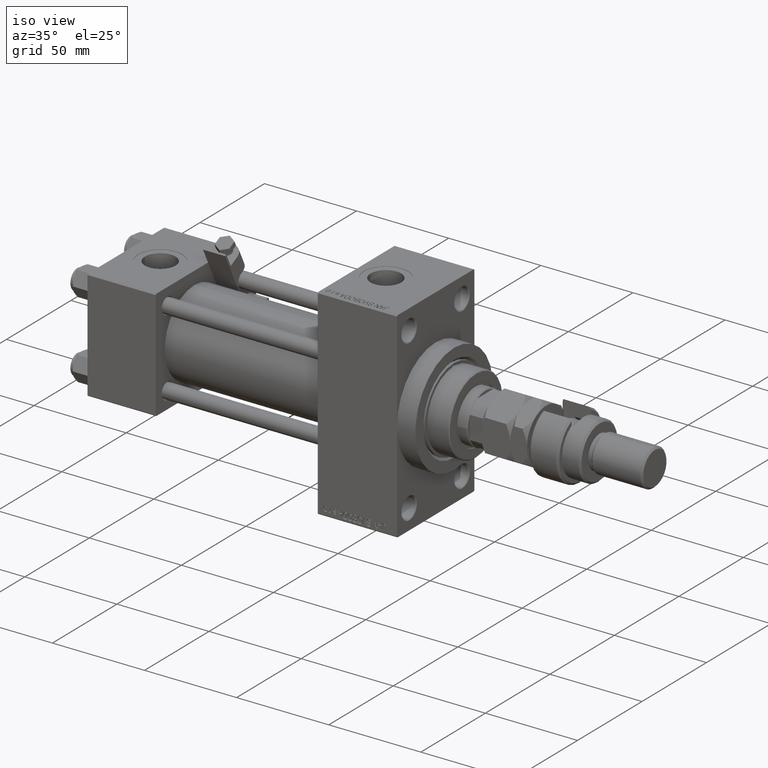
[diagram: clean part render]
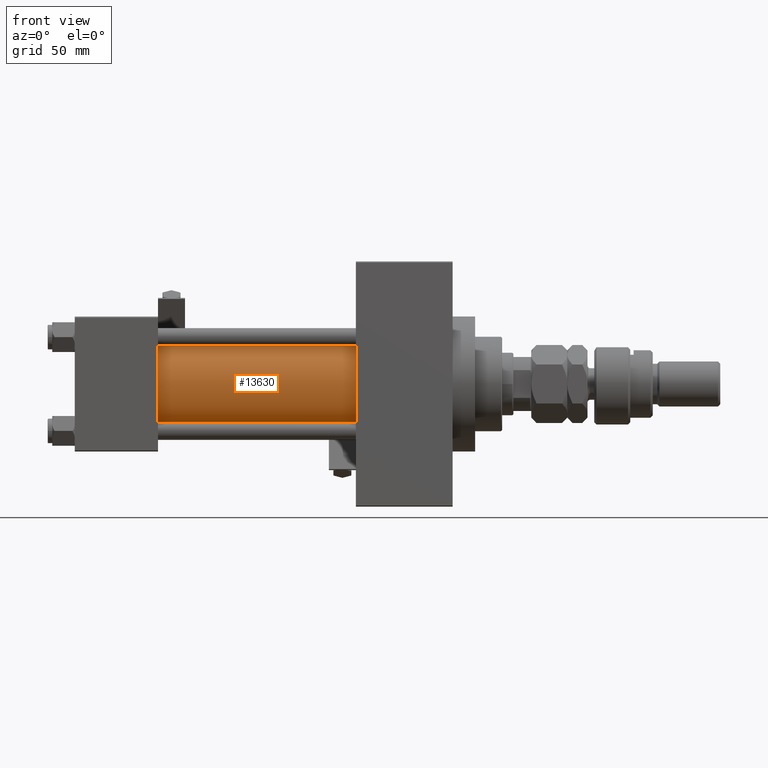
[diagram: tour spotlight — one face highlighted and labeled with its STEP entity id]
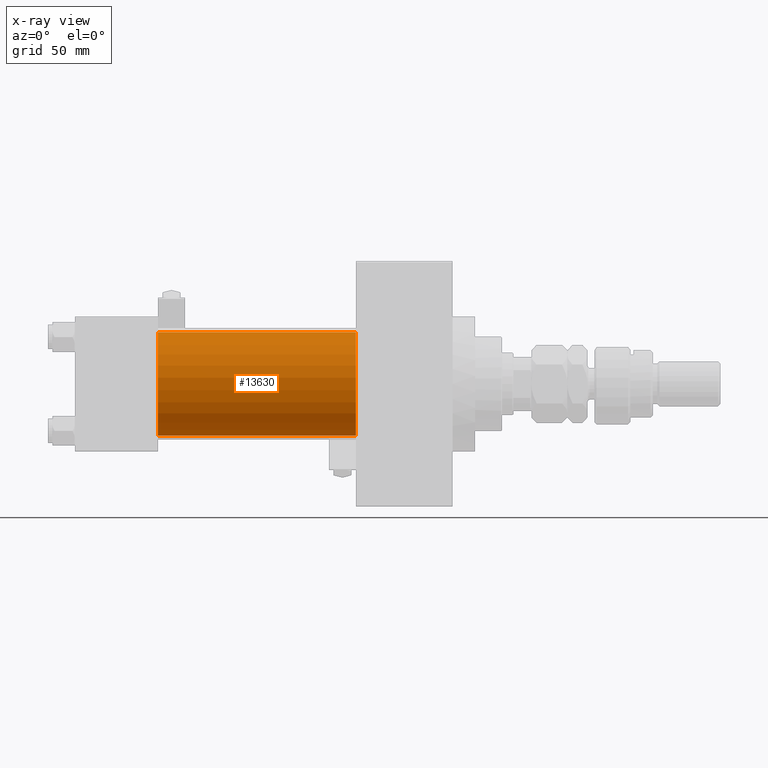
[diagram: x-ray of the same camera — body ghosted, this tour face saturated]
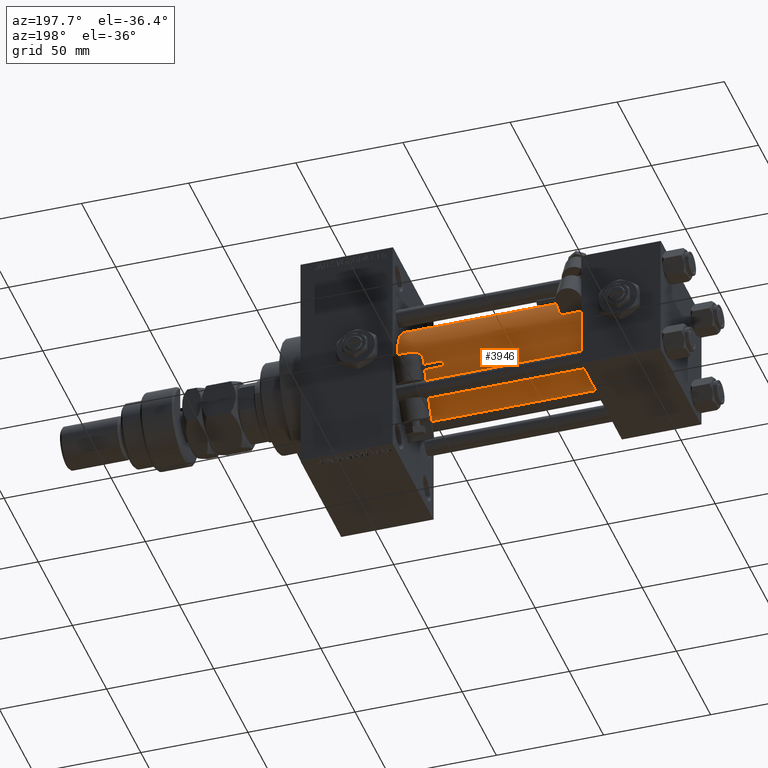
[diagram: tour spotlight — one face highlighted and labeled with its STEP entity id]
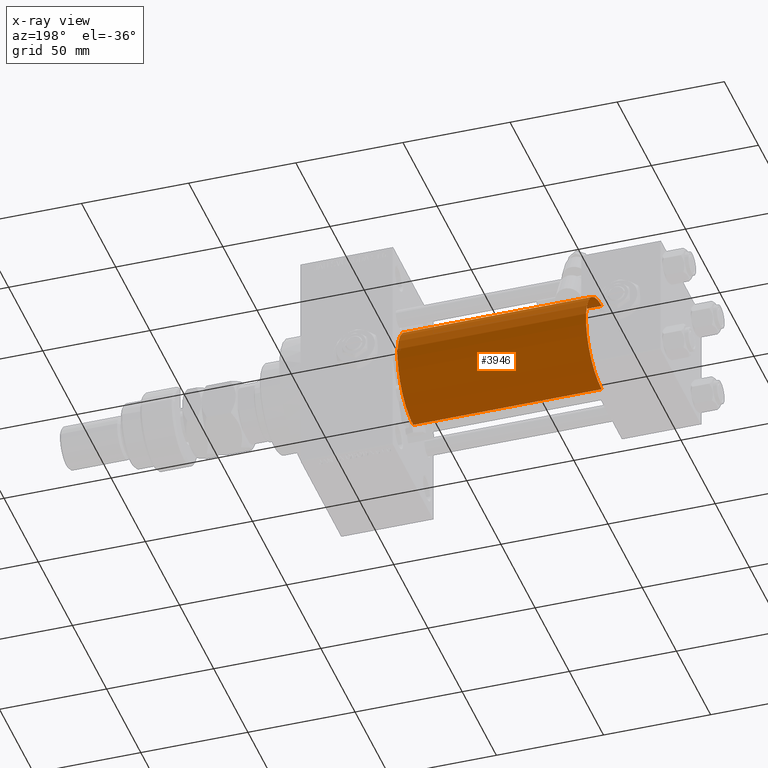
[diagram: x-ray of the same camera — body ghosted, this tour face saturated]
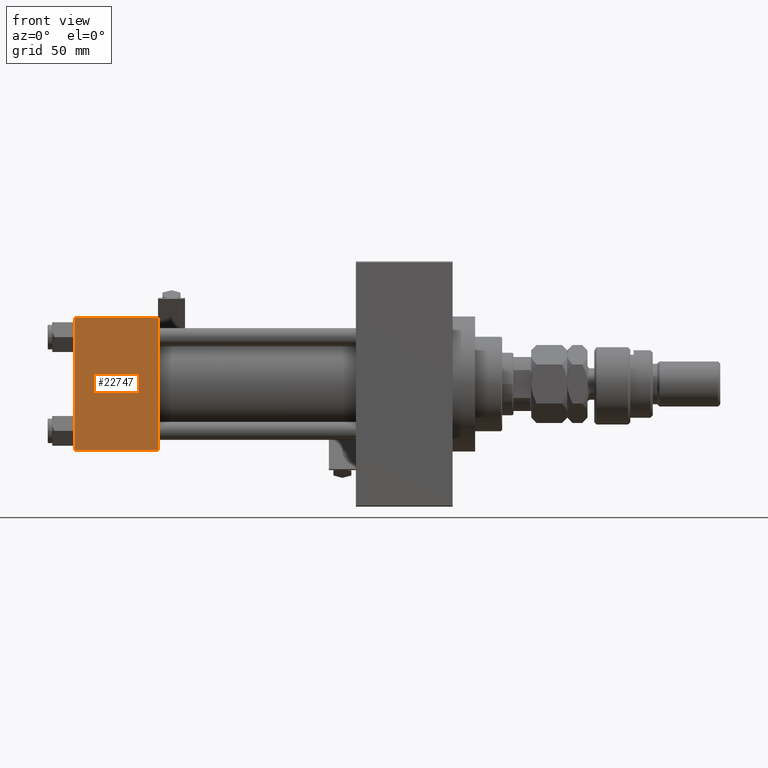
[diagram: tour spotlight — one face highlighted and labeled with its STEP entity id]
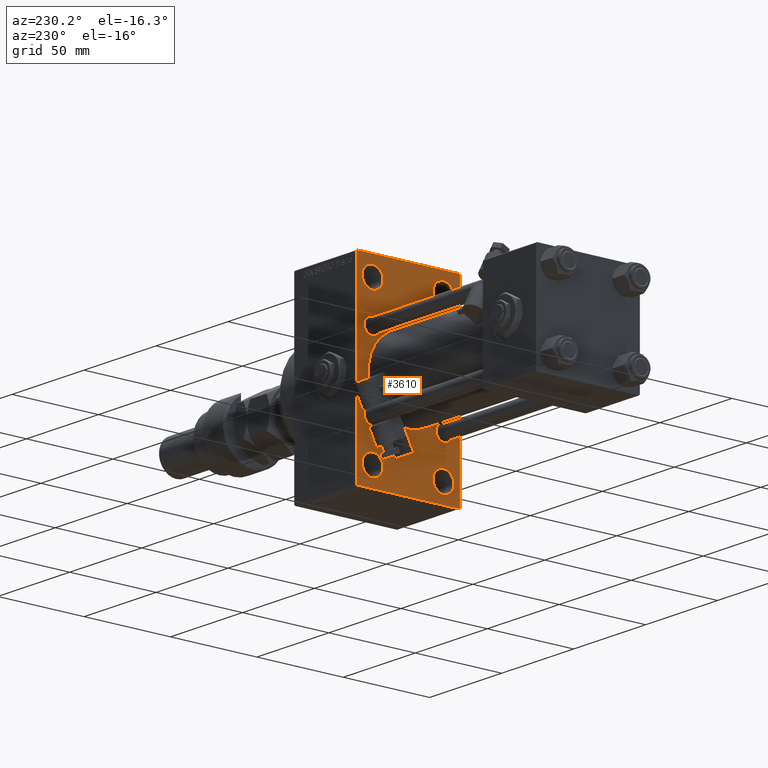
[diagram: tour spotlight — one face highlighted and labeled with its STEP entity id]
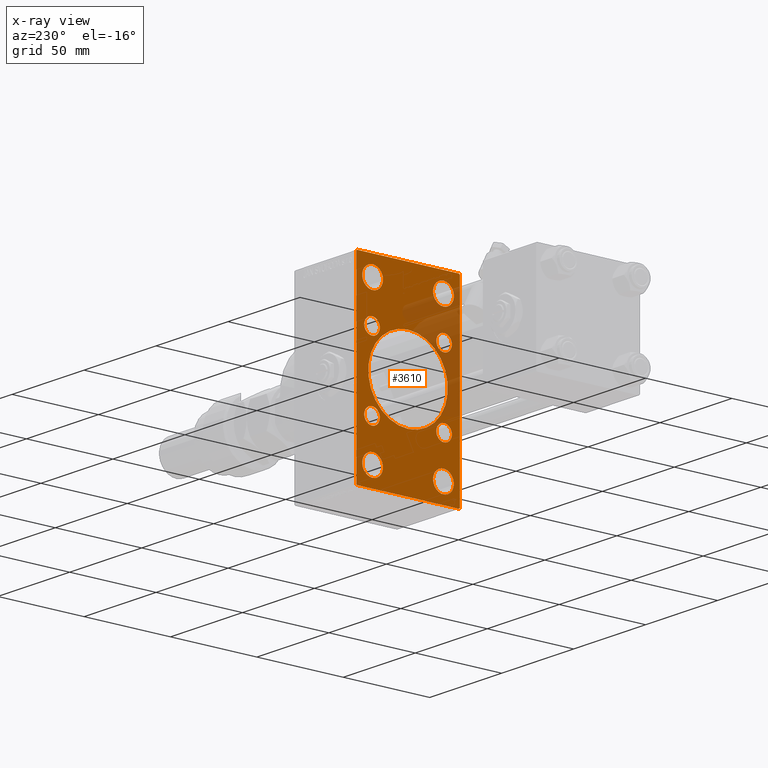
[diagram: x-ray of the same camera — body ghosted, this tour face saturated]
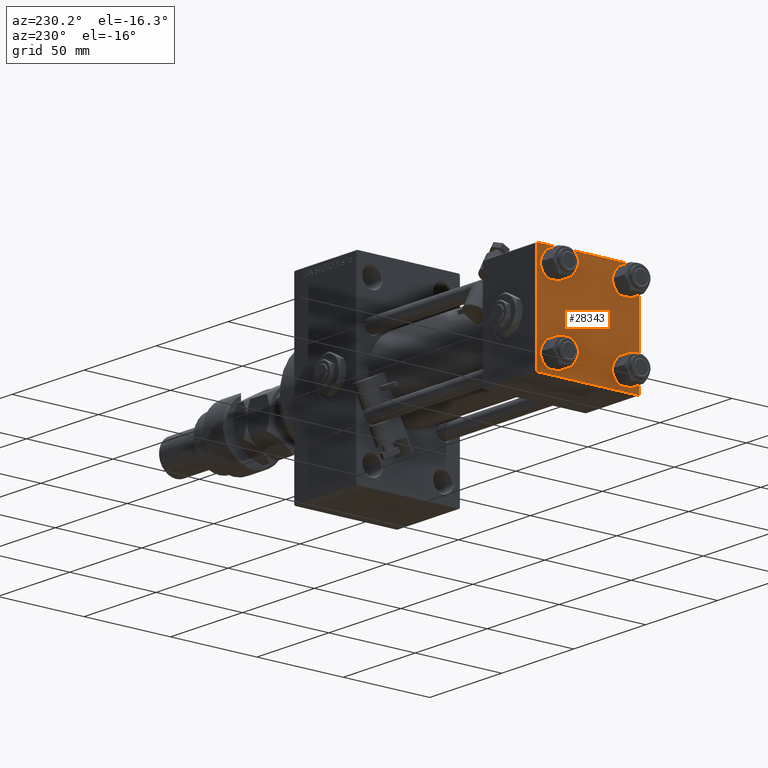
[diagram: tour spotlight — one face highlighted and labeled with its STEP entity id]
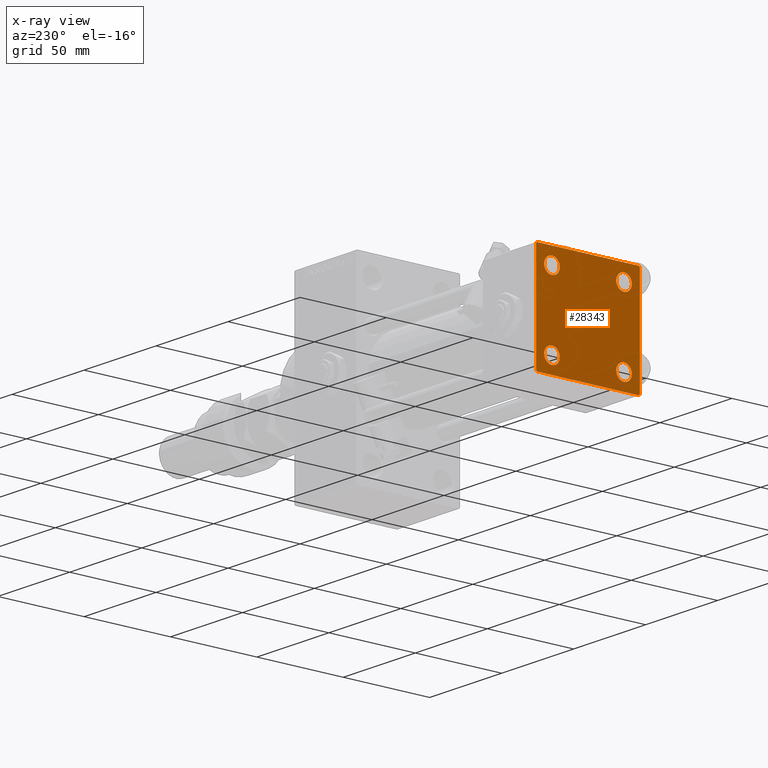
[diagram: x-ray of the same camera — body ghosted, this tour face saturated]
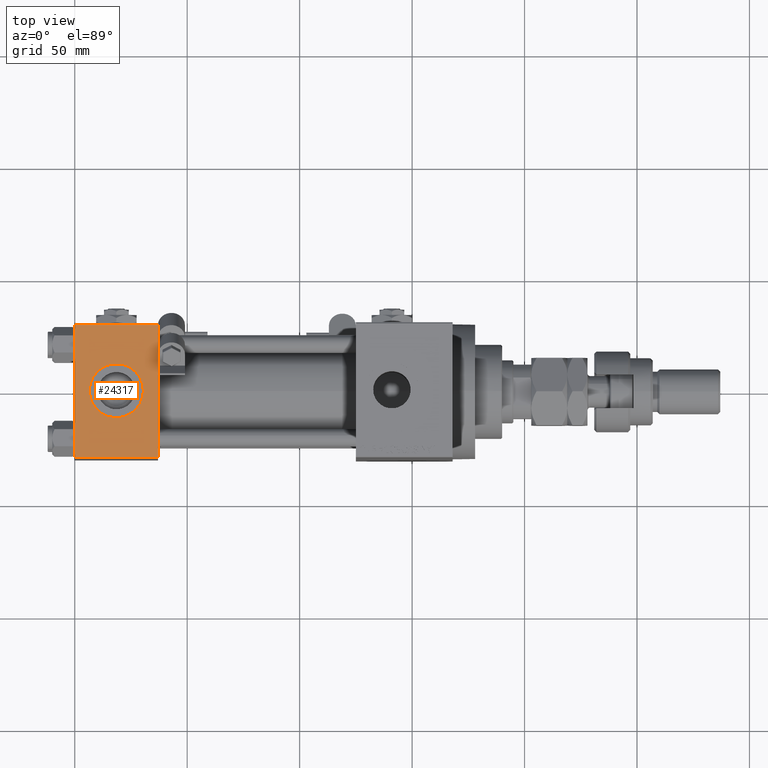
[diagram: tour spotlight — one face highlighted and labeled with its STEP entity id]
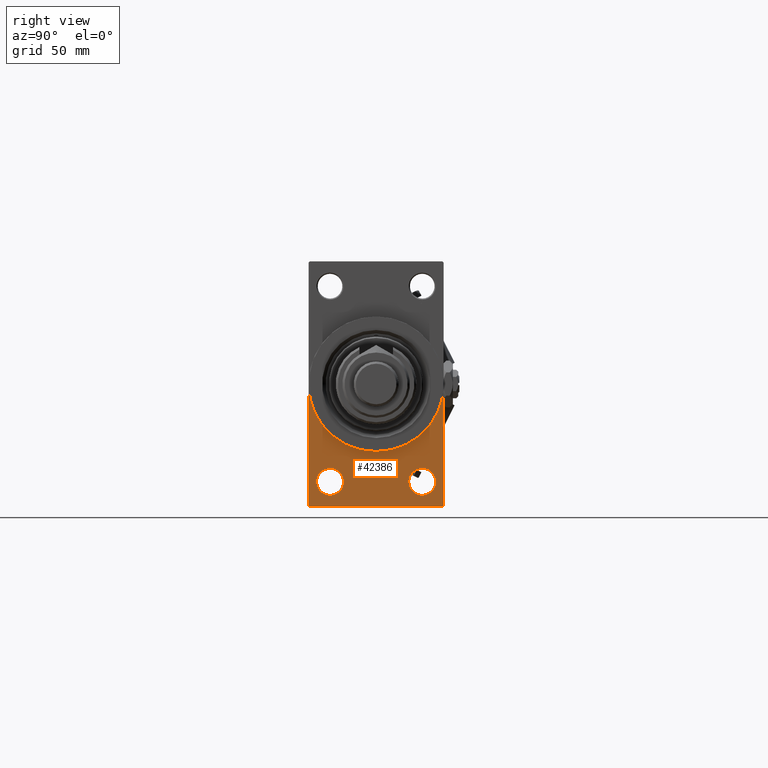
[diagram: tour spotlight — one face highlighted and labeled with its STEP entity id]
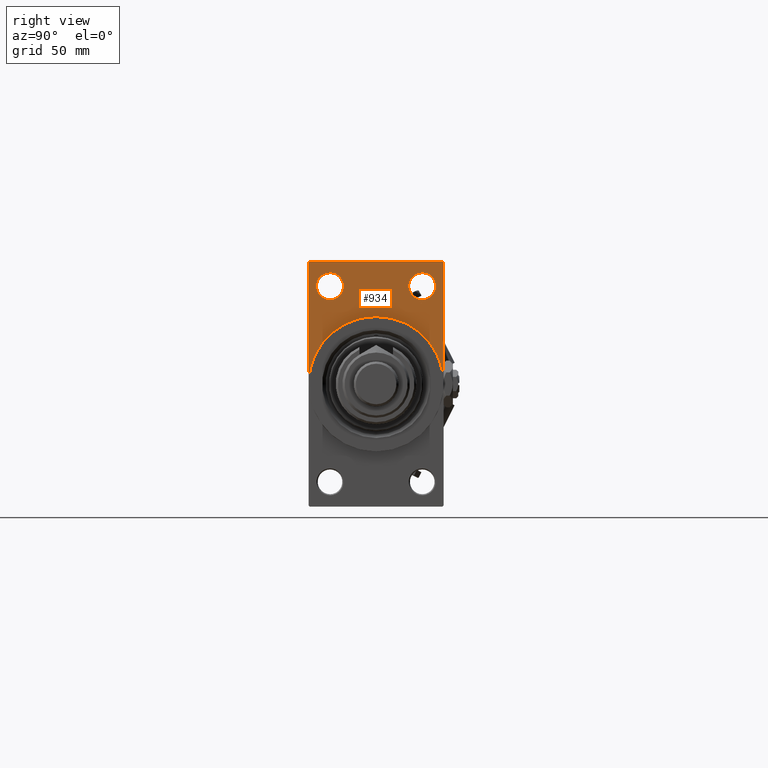
[diagram: tour spotlight — one face highlighted and labeled with its STEP entity id]
A machine part: a face-by-face anatomy tour. The part has 1364 B-rep faces; the first image is the clean iso view, then the 8 largest visible faces are spotlighted one at a time (largest first), each with its STEP entity span.

Face 1 — front view, entity #13630. An x-ray twin of the same camera follows (body ghosted, this face saturated) — the face is partly hidden behind the body. In plain terms, the highlighted cylindrical surface (partial cylindrical patch) has radius 23 mm, axis along (-1, -0, -0).
Definition (entity closure, byte-faithful):
#1149 = ORIENTED_EDGE ( 'NONE', *, *, #41886, .F. ) ;
#4604 = CARTESIAN_POINT ( 'NONE',  ( 125.0000000000000000, -2.602085213965210642E-15, 23.00000000000000000 ) ) ;
#5037 = CARTESIAN_POINT ( 'NONE',  ( 125.0000000000000000, 2.146024240737016609E-16, -23.00000000000000000 ) ) ;
#6319 = DIRECTION ( 'NONE',  ( 0.000000000000000000, 0.000000000000000000, -1.000000000000000000 ) ) ;
#6644 = DIRECTION ( 'NONE',  ( -1.000000000000000000, -0.000000000000000000, -0.000000000000000000 ) ) ;
#7708 = EDGE_CURVE ( 'NONE', #31316, #38340, #37612, .T. ) ;
#10712 = CARTESIAN_POINT ( 'NONE',  ( 125.0000000000000000, 2.146024240737016609E-16, -23.00000000000000000 ) ) ;
#12790 = EDGE_LOOP ( 'NONE', ( #1149, #31544, #41754, #22384 ) ) ;
#13064 = VERTEX_POINT ( 'NONE', #5037 ) ;
#13630 = ADVANCED_FACE ( 'NONE', ( #38121 ), #14580, .T. ) ;
#13915 = DIRECTION ( 'NONE',  ( 1.000000000000000000, 0.000000000000000000, 0.000000000000000000 ) ) ;
#14580 = CYLINDRICAL_SURFACE ( 'NONE', #32942, 23.00000000000000000 ) ;
#18243 = CARTESIAN_POINT ( 'NONE',  ( 125.0000000000000000, -2.602085213965210642E-15, 0.000000000000000000 ) ) ;
#18891 = CARTESIAN_POINT ( 'NONE',  ( 37.00000000000000711, -2.602085213965210642E-15, 0.000000000000000000 ) ) ;
#18907 = CARTESIAN_POINT ( 'NONE',  ( 125.0000000000000000, -2.602085213965210642E-15, 23.00000000000000000 ) ) ;
#19080 = CIRCLE ( 'NONE', #39805, 23.00000000000000000 ) ;
#19808 = CIRCLE ( 'NONE', #37112, 23.00000000000000000 ) ;
#22005 = CARTESIAN_POINT ( 'NONE',  ( 37.00000000000000711, -2.602085213965210642E-15, 23.00000000000000000 ) ) ;
#22384 = ORIENTED_EDGE ( 'NONE', *, *, #35781, .T. ) ;
#22906 = VECTOR ( 'NONE', #6644, 1000.000000000000000 ) ;
#23214 = DIRECTION ( 'NONE',  ( 1.000000000000000000, -0.000000000000000000, 0.000000000000000000 ) ) ;
#25188 = DIRECTION ( 'NONE',  ( -1.000000000000000000, -0.000000000000000000, -0.000000000000000000 ) ) ;
#25959 = DIRECTION ( 'NONE',  ( 0.000000000000000000, 0.000000000000000000, 1.000000000000000000 ) ) ;
#26756 = DIRECTION ( 'NONE',  ( -1.000000000000000000, -0.000000000000000000, -0.000000000000000000 ) ) ;
#27543 = DIRECTION ( 'NONE',  ( 0.000000000000000000, 0.000000000000000000, 1.000000000000000000 ) ) ;
#30807 = CARTESIAN_POINT ( 'NONE',  ( 125.0000000000000000, -2.602085213965210642E-15, 0.000000000000000000 ) ) ;
#31316 = VERTEX_POINT ( 'NONE', #18907 ) ;
#31544 = ORIENTED_EDGE ( 'NONE', *, *, #32644, .F. ) ;
#32644 = EDGE_CURVE ( 'NONE', #31316, #13064, #19808, .T. ) ;
#32942 = AXIS2_PLACEMENT_3D ( 'NONE', #30807, #26756, #25959 ) ;
#33927 = CARTESIAN_POINT ( 'NONE',  ( 37.00000000000000711, 2.146024240737016609E-16, -23.00000000000000000 ) ) ;
#35781 = EDGE_CURVE ( 'NONE', #38340, #45469, #19080, .T. ) ;
#37112 = AXIS2_PLACEMENT_3D ( 'NONE', #18243, #13915, #6319 ) ;
#37612 = LINE ( 'NONE', #4604, #50890 ) ;
#38121 = FACE_OUTER_BOUND ( 'NONE', #12790, .T. ) ;
#38340 = VERTEX_POINT ( 'NONE', #22005 ) ;
#38856 = LINE ( 'NONE', #10712, #22906 ) ;
#39805 = AXIS2_PLACEMENT_3D ( 'NONE', #18891, #23214, #27543 ) ;
#41754 = ORIENTED_EDGE ( 'NONE', *, *, #7708, .T. ) ;
#41886 = EDGE_CURVE ( 'NONE', #13064, #45469, #38856, .T. ) ;
#45469 = VERTEX_POINT ( 'NONE', #33927 ) ;
#50890 = VECTOR ( 'NONE', #25188, 1000.000000000000000 ) ;

Face 2 — auxiliary view, entity #3946. An x-ray twin of the same camera follows (body ghosted, this face saturated) — the face is partly hidden behind the body. In plain terms, the highlighted cylindrical surface (partial cylindrical patch) has radius 23 mm, axis along (-1, -0, -0).
Definition (entity closure, byte-faithful):
#1517 = AXIS2_PLACEMENT_3D ( 'NONE', #53078, #44986, #53347 ) ;
#2587 = DIRECTION ( 'NONE',  ( 0.000000000000000000, 0.000000000000000000, -1.000000000000000000 ) ) ;
#3800 = ORIENTED_EDGE ( 'NONE', *, *, #7708, .F. ) ;
#3946 = ADVANCED_FACE ( 'NONE', ( #41971 ), #36592, .T. ) ;
#4604 = CARTESIAN_POINT ( 'NONE',  ( 125.0000000000000000, -2.602085213965210642E-15, 23.00000000000000000 ) ) ;
#5037 = CARTESIAN_POINT ( 'NONE',  ( 125.0000000000000000, 2.146024240737016609E-16, -23.00000000000000000 ) ) ;
#5719 = ORIENTED_EDGE ( 'NONE', *, *, #46179, .F. ) ;
#6644 = DIRECTION ( 'NONE',  ( -1.000000000000000000, -0.000000000000000000, -0.000000000000000000 ) ) ;
#7315 = ORIENTED_EDGE ( 'NONE', *, *, #23636, .T. ) ;
#7708 = EDGE_CURVE ( 'NONE', #31316, #38340, #37612, .T. ) ;
#8404 = ORIENTED_EDGE ( 'NONE', *, *, #41886, .T. ) ;
#10712 = CARTESIAN_POINT ( 'NONE',  ( 125.0000000000000000, 2.146024240737016609E-16, -23.00000000000000000 ) ) ;
#10922 = AXIS2_PLACEMENT_3D ( 'NONE', #35214, #34685, #31426 ) ;
#13064 = VERTEX_POINT ( 'NONE', #5037 ) ;
#18907 = CARTESIAN_POINT ( 'NONE',  ( 125.0000000000000000, -2.602085213965210642E-15, 23.00000000000000000 ) ) ;
#22005 = CARTESIAN_POINT ( 'NONE',  ( 37.00000000000000711, -2.602085213965210642E-15, 23.00000000000000000 ) ) ;
#22779 = EDGE_LOOP ( 'NONE', ( #5719, #8404, #7315, #3800 ) ) ;
#22906 = VECTOR ( 'NONE', #6644, 1000.000000000000000 ) ;
#23636 = EDGE_CURVE ( 'NONE', #45469, #38340, #33361, .T. ) ;
#25188 = DIRECTION ( 'NONE',  ( -1.000000000000000000, -0.000000000000000000, -0.000000000000000000 ) ) ;
#31316 = VERTEX_POINT ( 'NONE', #18907 ) ;
#31426 = DIRECTION ( 'NONE',  ( 0.000000000000000000, 0.000000000000000000, 1.000000000000000000 ) ) ;
#33361 = CIRCLE ( 'NONE', #10922, 23.00000000000000000 ) ;
#33927 = CARTESIAN_POINT ( 'NONE',  ( 37.00000000000000711, 2.146024240737016609E-16, -23.00000000000000000 ) ) ;
#34685 = DIRECTION ( 'NONE',  ( 1.000000000000000000, -0.000000000000000000, 0.000000000000000000 ) ) ;
#35214 = CARTESIAN_POINT ( 'NONE',  ( 37.00000000000000711, -2.602085213965210642E-15, 0.000000000000000000 ) ) ;
#35601 = CARTESIAN_POINT ( 'NONE',  ( 125.0000000000000000, -2.602085213965210642E-15, 0.000000000000000000 ) ) ;
#36592 = CYLINDRICAL_SURFACE ( 'NONE', #1517, 23.00000000000000000 ) ;
#37612 = LINE ( 'NONE', #4604, #50890 ) ;
#38340 = VERTEX_POINT ( 'NONE', #22005 ) ;
#38856 = LINE ( 'NONE', #10712, #22906 ) ;
#41065 = AXIS2_PLACEMENT_3D ( 'NONE', #35601, #52073, #2587 ) ;
#41886 = EDGE_CURVE ( 'NONE', #13064, #45469, #38856, .T. ) ;
#41971 = FACE_OUTER_BOUND ( 'NONE', #22779, .T. ) ;
#44986 = DIRECTION ( 'NONE',  ( -1.000000000000000000, -0.000000000000000000, -0.000000000000000000 ) ) ;
#45469 = VERTEX_POINT ( 'NONE', #33927 ) ;
#46179 = EDGE_CURVE ( 'NONE', #13064, #31316, #48085, .T. ) ;
#48085 = CIRCLE ( 'NONE', #41065, 23.00000000000000000 ) ;
#50890 = VECTOR ( 'NONE', #25188, 1000.000000000000000 ) ;
#52073 = DIRECTION ( 'NONE',  ( 1.000000000000000000, 0.000000000000000000, 0.000000000000000000 ) ) ;
#53078 = CARTESIAN_POINT ( 'NONE',  ( 125.0000000000000000, -2.602085213965210642E-15, 0.000000000000000000 ) ) ;
#53347 = DIRECTION ( 'NONE',  ( 0.000000000000000000, 0.000000000000000000, 1.000000000000000000 ) ) ;

Face 3 — front view, entity #22747. In plain terms, the highlighted planar face has unit normal (0, 1, 0).
Definition (entity closure, byte-faithful):
#4413 = ORIENTED_EDGE ( 'NONE', *, *, #48380, .T. ) ;
#4554 = VERTEX_POINT ( 'NONE', #35810 ) ;
#5215 = EDGE_CURVE ( 'NONE', #15064, #26566, #27664, .T. ) ;
#8789 = VECTOR ( 'NONE', #9408, 1000.000000000000000 ) ;
#9408 = DIRECTION ( 'NONE',  ( 0.000000000000000000, 0.000000000000000000, -1.000000000000000000 ) ) ;
#13475 = AXIS2_PLACEMENT_3D ( 'NONE', #19835, #51083, #42972 ) ;
#15064 = VERTEX_POINT ( 'NONE', #16120 ) ;
#15624 = DIRECTION ( 'NONE',  ( 0.000000000000000000, 0.000000000000000000, -1.000000000000000000 ) ) ;
#16120 = CARTESIAN_POINT ( 'NONE',  ( 37.00000000000000000, -30.00000000000000000, 29.49999999999999289 ) ) ;
#17975 = CARTESIAN_POINT ( 'NONE',  ( 0.000000000000000000, -30.00000000000000000, -29.50000000000001776 ) ) ;
#19666 = LINE ( 'NONE', #32113, #30699 ) ;
#19789 = VERTEX_POINT ( 'NONE', #17975 ) ;
#19835 = CARTESIAN_POINT ( 'NONE',  ( 37.00000000000000000, -30.00000000000000000, 29.99999999999999289 ) ) ;
#21073 = CARTESIAN_POINT ( 'NONE',  ( 0.000000000000000000, -30.00000000000000000, 29.99999999999999289 ) ) ;
#21441 = EDGE_CURVE ( 'NONE', #15064, #4554, #19666, .T. ) ;
#22747 = ADVANCED_FACE ( 'NONE', ( #23895 ), #40381, .F. ) ;
#23308 = ORIENTED_EDGE ( 'NONE', *, *, #21441, .F. ) ;
#23895 = FACE_OUTER_BOUND ( 'NONE', #47767, .T. ) ;
#26566 = VERTEX_POINT ( 'NONE', #51871 ) ;
#27664 = LINE ( 'NONE', #53315, #40518 ) ;
#30699 = VECTOR ( 'NONE', #15624, 1000.000000000000000 ) ;
#32113 = CARTESIAN_POINT ( 'NONE',  ( 37.00000000000000000, -30.00000000000000000, 29.99999999999999289 ) ) ;
#32159 = ORIENTED_EDGE ( 'NONE', *, *, #5215, .T. ) ;
#34226 = VECTOR ( 'NONE', #48501, 1000.000000000000000 ) ;
#35790 = CARTESIAN_POINT ( 'NONE',  ( 37.00000000000000000, -30.00000000000000000, -29.50000000000001776 ) ) ;
#35810 = CARTESIAN_POINT ( 'NONE',  ( 37.00000000000000000, -30.00000000000000000, -29.50000000000001776 ) ) ;
#37494 = EDGE_CURVE ( 'NONE', #26566, #19789, #41627, .T. ) ;
#40381 = PLANE ( 'NONE',  #13475 ) ;
#40518 = VECTOR ( 'NONE', #40628, 1000.000000000000000 ) ;
#40628 = DIRECTION ( 'NONE',  ( -1.000000000000000000, 0.000000000000000000, 0.000000000000000000 ) ) ;
#41627 = LINE ( 'NONE', #21073, #8789 ) ;
#42972 = DIRECTION ( 'NONE',  ( 0.000000000000000000, -0.000000000000000000, 1.000000000000000000 ) ) ;
#47767 = EDGE_LOOP ( 'NONE', ( #53515, #4413, #23308, #32159 ) ) ;
#47953 = LINE ( 'NONE', #35790, #34226 ) ;
#48380 = EDGE_CURVE ( 'NONE', #19789, #4554, #47953, .T. ) ;
#48501 = DIRECTION ( 'NONE',  ( 1.000000000000000000, 0.000000000000000000, 0.000000000000000000 ) ) ;
#51083 = DIRECTION ( 'NONE',  ( -0.000000000000000000, 1.000000000000000000, 0.000000000000000000 ) ) ;
#51871 = CARTESIAN_POINT ( 'NONE',  ( 0.000000000000000000, -30.00000000000000000, 29.49999999999999289 ) ) ;
#53315 = CARTESIAN_POINT ( 'NONE',  ( 37.00000000000000000, -30.00000000000000000, 29.49999999999999289 ) ) ;
#53515 = ORIENTED_EDGE ( 'NONE', *, *, #37494, .T. ) ;

Face 4 — auxiliary view, entity #3610. An x-ray twin of the same camera follows (body ghosted, this face saturated) — the face is partly hidden behind the body. In plain terms, the highlighted planar face has unit normal (-1, 0, 0).
Definition (entity closure, byte-faithful):
#134 = CARTESIAN_POINT ( 'NONE',  ( 125.0000000000000000, 0.000000000000000000, 0.000000000000000000 ) ) ;
#161 = VERTEX_POINT ( 'NONE', #31269 ) ;
#457 = EDGE_CURVE ( 'NONE', #24399, #32789, #15247, .T. ) ;
#539 = VECTOR ( 'NONE', #33530, 1000.000000000000000 ) ;
#709 = ORIENTED_EDGE ( 'NONE', *, *, #27882, .T. ) ;
#1062 = CARTESIAN_POINT ( 'NONE',  ( 125.0000000000000000, 42.00000000000082423, 41.99999999999849365 ) ) ;
#1286 = DIRECTION ( 'NONE',  ( 1.000000000000000000, -0.000000000000000000, 0.000000000000000000 ) ) ;
#1348 = EDGE_CURVE ( 'NONE', #13148, #23208, #52403, .T. ) ;
#1570 = EDGE_LOOP ( 'NONE', ( #11734, #31186 ) ) ;
#1585 = LINE ( 'NONE', #1062, #539 ) ;
#1600 = AXIS2_PLACEMENT_3D ( 'NONE', #29564, #29815, #4909 ) ;
#1637 = AXIS2_PLACEMENT_3D ( 'NONE', #2920, #36196, #39994 ) ;
#1682 = CARTESIAN_POINT ( 'NONE',  ( 125.0000000000000000, 20.50000000000000000, -43.50000000000000000 ) ) ;
#1935 = ORIENTED_EDGE ( 'NONE', *, *, #48978, .T. ) ;
#2221 = VERTEX_POINT ( 'NONE', #7105 ) ;
#2587 = DIRECTION ( 'NONE',  ( 0.000000000000000000, 0.000000000000000000, -1.000000000000000000 ) ) ;
#2660 = DIRECTION ( 'NONE',  ( 0.000000000000000000, -1.000000000000000000, -1.156482317317871478E-16 ) ) ;
#2920 = CARTESIAN_POINT ( 'NONE',  ( 125.0000000000000000, -20.50000000000000000, -43.50000000000000000 ) ) ;
#3113 = FACE_BOUND ( 'NONE', #20603, .T. ) ;
#3233 = CARTESIAN_POINT ( 'NONE',  ( 125.0000000000000000, 20.84999999999999787, 20.85000000000000142 ) ) ;
#3249 = AXIS2_PLACEMENT_3D ( 'NONE', #134, #28842, #28582 ) ;
#3576 = CARTESIAN_POINT ( 'NONE',  ( 125.0000000000000000, -20.84999999999999076, -16.34999999999999787 ) ) ;
#3610 = ADVANCED_FACE ( 'NONE', ( #40178, #11516, #10246, #7175, #3113, #19631, #36125, #7442, #52882, #12330 ), #45058, .T. ) ;
#3883 = VERTEX_POINT ( 'NONE', #12258 ) ;
#3968 = CARTESIAN_POINT ( 'NONE',  ( 125.0000000000000000, -30.00000000000000000, -53.99999999999998579 ) ) ;
#4405 = CARTESIAN_POINT ( 'NONE',  ( 125.0000000000000000, -20.84999999999999076, 16.34999999999999787 ) ) ;
#4909 = DIRECTION ( 'NONE',  ( 0.000000000000000000, 0.000000000000000000, 1.000000000000000000 ) ) ;
#5037 = CARTESIAN_POINT ( 'NONE',  ( 125.0000000000000000, 2.146024240737016609E-16, -23.00000000000000000 ) ) ;
#5456 = CARTESIAN_POINT ( 'NONE',  ( 125.0000000000000000, 20.50000000000000000, 37.50000000000002132 ) ) ;
#5868 = LINE ( 'NONE', #42407, #43923 ) ;
#6196 = CIRCLE ( 'NONE', #7911, 5.999999999999977796 ) ;
#6319 = DIRECTION ( 'NONE',  ( 0.000000000000000000, 0.000000000000000000, -1.000000000000000000 ) ) ;
#6611 = EDGE_LOOP ( 'NONE', ( #8828, #52899 ) ) ;
#7105 = CARTESIAN_POINT ( 'NONE',  ( 125.0000000000000000, 29.99999999999999645, 53.99999999999999289 ) ) ;
#7175 = FACE_BOUND ( 'NONE', #12566, .T. ) ;
#7442 = FACE_BOUND ( 'NONE', #28537, .T. ) ;
#7716 = CARTESIAN_POINT ( 'NONE',  ( 125.0000000000000000, 20.50000000000000000, 43.50000000000000000 ) ) ;
#7911 = AXIS2_PLACEMENT_3D ( 'NONE', #1682, #9800, #46598 ) ;
#7995 = EDGE_CURVE ( 'NONE', #32653, #38658, #44326, .T. ) ;
#8078 = EDGE_CURVE ( 'NONE', #2221, #50121, #33233, .T. ) ;
#8125 = CARTESIAN_POINT ( 'NONE',  ( 125.0000000000000000, 20.84999999999999787, 20.85000000000000142 ) ) ;
#8828 = ORIENTED_EDGE ( 'NONE', *, *, #37014, .T. ) ;
#8933 = CARTESIAN_POINT ( 'NONE',  ( 125.0000000000000000, -20.50000000000000000, -37.50000000000002132 ) ) ;
#8981 = AXIS2_PLACEMENT_3D ( 'NONE', #25266, #34163, #41751 ) ;
#9405 = CIRCLE ( 'NONE', #1637, 5.999999999999977796 ) ;
#9786 = ORIENTED_EDGE ( 'NONE', *, *, #30384, .T. ) ;
#9800 = DIRECTION ( 'NONE',  ( 1.000000000000000000, -0.000000000000000000, 0.000000000000000000 ) ) ;
#9849 = CARTESIAN_POINT ( 'NONE',  ( 125.0000000000000000, -20.84999999999999076, -25.35000000000001208 ) ) ;
#10005 = AXIS2_PLACEMENT_3D ( 'NONE', #3233, #28961, #11635 ) ;
#10246 = FACE_BOUND ( 'NONE', #6611, .T. ) ;
#10573 = CIRCLE ( 'NONE', #48562, 5.999999999999977796 ) ;
#11171 = DIRECTION ( 'NONE',  ( 1.000000000000000000, -0.000000000000000000, 0.000000000000000000 ) ) ;
#11344 = CIRCLE ( 'NONE', #45016, 5.999999999999977796 ) ;
#11509 = CARTESIAN_POINT ( 'NONE',  ( 125.0000000000000000, 29.50000000000002132, 54.49999999999999289 ) ) ;
#11516 = FACE_BOUND ( 'NONE', #1570, .T. ) ;
#11635 = DIRECTION ( 'NONE',  ( 0.000000000000000000, 0.000000000000000000, 1.000000000000000000 ) ) ;
#11734 = ORIENTED_EDGE ( 'NONE', *, *, #38695, .T. ) ;
#11744 = ORIENTED_EDGE ( 'NONE', *, *, #1348, .T. ) ;
#12258 = CARTESIAN_POINT ( 'NONE',  ( 125.0000000000000000, 29.49999999999999645, -54.49999999999999289 ) ) ;
#12330 = FACE_OUTER_BOUND ( 'NONE', #20933, .T. ) ;
#12566 = EDGE_LOOP ( 'NONE', ( #32866, #37167 ) ) ;
#12568 = ORIENTED_EDGE ( 'NONE', *, *, #29340, .T. ) ;
#12773 = CARTESIAN_POINT ( 'NONE',  ( 125.0000000000000000, -20.84999999999999076, -20.85000000000000497 ) ) ;
#13064 = VERTEX_POINT ( 'NONE', #5037 ) ;
#13129 = ORIENTED_EDGE ( 'NONE', *, *, #15773, .T. ) ;
#13148 = VERTEX_POINT ( 'NONE', #3576 ) ;
#13430 = EDGE_CURVE ( 'NONE', #53320, #46144, #23016, .T. ) ;
#13915 = DIRECTION ( 'NONE',  ( 1.000000000000000000, 0.000000000000000000, 0.000000000000000000 ) ) ;
#14085 = VERTEX_POINT ( 'NONE', #31281 ) ;
#14105 = EDGE_CURVE ( 'NONE', #14085, #40689, #11344, .T. ) ;
#15247 = CIRCLE ( 'NONE', #42877, 4.500000000000007105 ) ;
#15267 = CARTESIAN_POINT ( 'NONE',  ( 125.0000000000000000, -20.84999999999999076, 25.35000000000001208 ) ) ;
#15604 = EDGE_CURVE ( 'NONE', #15860, #45893, #20931, .T. ) ;
#15672 = EDGE_CURVE ( 'NONE', #45893, #15860, #29580, .T. ) ;
#15773 = EDGE_CURVE ( 'NONE', #21180, #50323, #50280, .T. ) ;
#15785 = CIRCLE ( 'NONE', #46006, 5.999999999999977796 ) ;
#15860 = VERTEX_POINT ( 'NONE', #17051 ) ;
#16199 = LINE ( 'NONE', #28658, #47441 ) ;
#16594 = EDGE_CURVE ( 'NONE', #40689, #14085, #15785, .T. ) ;
#16750 = CARTESIAN_POINT ( 'NONE',  ( 125.0000000000000000, 29.99999999999999645, 54.49999999999999289 ) ) ;
#17051 = CARTESIAN_POINT ( 'NONE',  ( 125.0000000000000000, 20.84999999999999787, -16.34999999999999432 ) ) ;
#17446 = CIRCLE ( 'NONE', #49376, 4.500000000000007105 ) ;
#17454 = EDGE_CURVE ( 'NONE', #41193, #34245, #28048, .T. ) ;
#17927 = CARTESIAN_POINT ( 'NONE',  ( 125.0000000000000000, -20.50000000000000000, 37.50000000000002132 ) ) ;
#18243 = CARTESIAN_POINT ( 'NONE',  ( 125.0000000000000000, -2.602085213965210642E-15, 0.000000000000000000 ) ) ;
#18403 = ORIENTED_EDGE ( 'NONE', *, *, #46179, .T. ) ;
#18410 = ORIENTED_EDGE ( 'NONE', *, *, #48876, .T. ) ;
#18897 = CIRCLE ( 'NONE', #1600, 5.999999999999977796 ) ;
#18907 = CARTESIAN_POINT ( 'NONE',  ( 125.0000000000000000, -2.602085213965210642E-15, 23.00000000000000000 ) ) ;
#19387 = ORIENTED_EDGE ( 'NONE', *, *, #457, .T. ) ;
#19482 = DIRECTION ( 'NONE',  ( 0.000000000000000000, -1.000000000000000000, 1.156482317317871478E-16 ) ) ;
#19501 = DIRECTION ( 'NONE',  ( 0.000000000000000000, 0.000000000000000000, 1.000000000000000000 ) ) ;
#19579 = EDGE_LOOP ( 'NONE', ( #34744, #38760 ) ) ;
#19631 = FACE_BOUND ( 'NONE', #27205, .T. ) ;
#19808 = CIRCLE ( 'NONE', #37112, 23.00000000000000000 ) ;
#20004 = CARTESIAN_POINT ( 'NONE',  ( 125.0000000000000000, 20.84999999999999787, 16.34999999999999432 ) ) ;
#20065 = VERTEX_POINT ( 'NONE', #25247 ) ;
#20148 = CARTESIAN_POINT ( 'NONE',  ( 125.0000000000000000, 20.50000000000000000, -37.50000000000002132 ) ) ;
#20603 = EDGE_LOOP ( 'NONE', ( #19387, #48780 ) ) ;
#20931 = CIRCLE ( 'NONE', #24401, 4.500000000000007105 ) ;
#20933 = EDGE_LOOP ( 'NONE', ( #1935, #43609, #47116, #12568, #37569, #18410, #47844, #9786 ) ) ;
#21080 = VERTEX_POINT ( 'NONE', #8933 ) ;
#21180 = VERTEX_POINT ( 'NONE', #20004 ) ;
#21425 = DIRECTION ( 'NONE',  ( 1.000000000000000000, -0.000000000000000000, 0.000000000000000000 ) ) ;
#21827 = EDGE_CURVE ( 'NONE', #20065, #44611, #27280, .T. ) ;
#21876 = CARTESIAN_POINT ( 'NONE',  ( 125.0000000000000000, -20.84999999999999076, 20.85000000000000497 ) ) ;
#22142 = ORIENTED_EDGE ( 'NONE', *, *, #32644, .T. ) ;
#22833 = CARTESIAN_POINT ( 'NONE',  ( 125.0000000000000000, -30.00000000000000000, 53.99999999999997158 ) ) ;
#22915 = CARTESIAN_POINT ( 'NONE',  ( 125.0000000000000000, -20.50000000000000000, 49.49999999999997158 ) ) ;
#23016 = LINE ( 'NONE', #31401, #45860 ) ;
#23179 = LINE ( 'NONE', #23711, #46219 ) ;
#23208 = VERTEX_POINT ( 'NONE', #9849 ) ;
#23711 = CARTESIAN_POINT ( 'NONE',  ( 125.0000000000000000, -42.00000000000051159, -41.99999999999905498 ) ) ;
#23782 = CARTESIAN_POINT ( 'NONE',  ( 125.0000000000000000, -30.00000000000000000, 54.50000000000000000 ) ) ;
#23964 = CARTESIAN_POINT ( 'NONE',  ( 125.0000000000000000, -20.84999999999999076, -20.85000000000000497 ) ) ;
#24399 = VERTEX_POINT ( 'NONE', #15267 ) ;
#24401 = AXIS2_PLACEMENT_3D ( 'NONE', #47642, #48445, #43038 ) ;
#25034 = DIRECTION ( 'NONE',  ( 0.000000000000000000, 0.000000000000000000, 1.000000000000000000 ) ) ;
#25072 = VECTOR ( 'NONE', #37552, 1000.000000000000000 ) ;
#25247 = CARTESIAN_POINT ( 'NONE',  ( 125.0000000000000000, 20.50000000000000000, -49.49999999999997158 ) ) ;
#25266 = CARTESIAN_POINT ( 'NONE',  ( 125.0000000000000000, -20.50000000000000000, 43.50000000000000000 ) ) ;
#26095 = AXIS2_PLACEMENT_3D ( 'NONE', #8125, #48966, #41123 ) ;
#26764 = LINE ( 'NONE', #47833, #34265 ) ;
#27205 = EDGE_LOOP ( 'NONE', ( #42356, #13129 ) ) ;
#27280 = CIRCLE ( 'NONE', #35867, 5.999999999999977796 ) ;
#27882 = EDGE_CURVE ( 'NONE', #34245, #41193, #18897, .T. ) ;
#28048 = CIRCLE ( 'NONE', #8981, 5.999999999999977796 ) ;
#28537 = EDGE_LOOP ( 'NONE', ( #11744, #35587 ) ) ;
#28582 = DIRECTION ( 'NONE',  ( -0.000000000000000000, 0.000000000000000000, 1.000000000000000000 ) ) ;
#28658 = CARTESIAN_POINT ( 'NONE',  ( 125.0000000000000000, -42.00000000000008527, 41.99999999999979394 ) ) ;
#28842 = DIRECTION ( 'NONE',  ( -1.000000000000000000, 0.000000000000000000, -0.000000000000000000 ) ) ;
#28961 = DIRECTION ( 'NONE',  ( 1.000000000000000000, -0.000000000000000000, 0.000000000000000000 ) ) ;
#29340 = EDGE_CURVE ( 'NONE', #32653, #46144, #16199, .T. ) ;
#29564 = CARTESIAN_POINT ( 'NONE',  ( 125.0000000000000000, -20.50000000000000000, 43.50000000000000000 ) ) ;
#29580 = CIRCLE ( 'NONE', #30414, 4.500000000000007105 ) ;
#29590 = VERTEX_POINT ( 'NONE', #36878 ) ;
#29815 = DIRECTION ( 'NONE',  ( 1.000000000000000000, -0.000000000000000000, 0.000000000000000000 ) ) ;
#29945 = CARTESIAN_POINT ( 'NONE',  ( 125.0000000000000000, -29.49999999999997513, 54.50000000000000000 ) ) ;
#30384 = EDGE_CURVE ( 'NONE', #50121, #3883, #5868, .T. ) ;
#30414 = AXIS2_PLACEMENT_3D ( 'NONE', #51682, #40058, #19501 ) ;
#30514 = DIRECTION ( 'NONE',  ( -0.000000000000000000, -0.7071067811865474617, -0.7071067811865474617 ) ) ;
#31186 = ORIENTED_EDGE ( 'NONE', *, *, #32144, .T. ) ;
#31269 = CARTESIAN_POINT ( 'NONE',  ( 125.0000000000000000, -20.50000000000000000, -49.49999999999997158 ) ) ;
#31281 = CARTESIAN_POINT ( 'NONE',  ( 125.0000000000000000, 20.50000000000000000, 49.49999999999997158 ) ) ;
#31316 = VERTEX_POINT ( 'NONE', #18907 ) ;
#31401 = CARTESIAN_POINT ( 'NONE',  ( 125.0000000000000000, 29.99999999999999645, 54.49999999999999289 ) ) ;
#31999 = CARTESIAN_POINT ( 'NONE',  ( 125.0000000000000000, -20.84999999999999076, 20.85000000000000497 ) ) ;
#32144 = EDGE_CURVE ( 'NONE', #161, #21080, #9405, .T. ) ;
#32346 = EDGE_CURVE ( 'NONE', #23208, #13148, #32790, .T. ) ;
#32644 = EDGE_CURVE ( 'NONE', #31316, #13064, #19808, .T. ) ;
#32653 = VERTEX_POINT ( 'NONE', #22833 ) ;
#32789 = VERTEX_POINT ( 'NONE', #4405 ) ;
#32790 = CIRCLE ( 'NONE', #48337, 4.500000000000007105 ) ;
#32866 = ORIENTED_EDGE ( 'NONE', *, *, #14105, .T. ) ;
#32937 = DIRECTION ( 'NONE',  ( 0.000000000000000000, 0.000000000000000000, 1.000000000000000000 ) ) ;
#33233 = LINE ( 'NONE', #16750, #25072 ) ;
#33328 = DIRECTION ( 'NONE',  ( 0.000000000000000000, 0.000000000000000000, 1.000000000000000000 ) ) ;
#33530 = DIRECTION ( 'NONE',  ( 0.000000000000000000, 0.7071067811865279218, -0.7071067811865671127 ) ) ;
#34163 = DIRECTION ( 'NONE',  ( 1.000000000000000000, -0.000000000000000000, 0.000000000000000000 ) ) ;
#34245 = VERTEX_POINT ( 'NONE', #17927 ) ;
#34265 = VECTOR ( 'NONE', #2660, 1000.000000000000000 ) ;
#34744 = ORIENTED_EDGE ( 'NONE', *, *, #15604, .T. ) ;
#35430 = DIRECTION ( 'NONE',  ( 0.000000000000000000, 0.000000000000000000, 1.000000000000000000 ) ) ;
#35587 = ORIENTED_EDGE ( 'NONE', *, *, #32346, .T. ) ;
#35601 = CARTESIAN_POINT ( 'NONE',  ( 125.0000000000000000, -2.602085213965210642E-15, 0.000000000000000000 ) ) ;
#35867 = AXIS2_PLACEMENT_3D ( 'NONE', #50281, #37854, #38380 ) ;
#36125 = FACE_BOUND ( 'NONE', #19579, .T. ) ;
#36196 = DIRECTION ( 'NONE',  ( 1.000000000000000000, -0.000000000000000000, 0.000000000000000000 ) ) ;
#36201 = CARTESIAN_POINT ( 'NONE',  ( 125.0000000000000000, 29.99999999999999645, -53.99999999999999289 ) ) ;
#36215 = DIRECTION ( 'NONE',  ( 1.000000000000000000, -0.000000000000000000, 0.000000000000000000 ) ) ;
#36878 = CARTESIAN_POINT ( 'NONE',  ( 125.0000000000000000, -29.50000000000000355, -54.50000000000000000 ) ) ;
#36980 = CARTESIAN_POINT ( 'NONE',  ( 125.0000000000000000, -20.50000000000000000, -43.50000000000000000 ) ) ;
#37014 = EDGE_CURVE ( 'NONE', #44611, #20065, #6196, .T. ) ;
#37112 = AXIS2_PLACEMENT_3D ( 'NONE', #18243, #13915, #6319 ) ;
#37167 = ORIENTED_EDGE ( 'NONE', *, *, #16594, .T. ) ;
#37552 = DIRECTION ( 'NONE',  ( 0.000000000000000000, 0.000000000000000000, -1.000000000000000000 ) ) ;
#37556 = EDGE_CURVE ( 'NONE', #32789, #24399, #17446, .T. ) ;
#37569 = ORIENTED_EDGE ( 'NONE', *, *, #13430, .F. ) ;
#37830 = DIRECTION ( 'NONE',  ( 0.000000000000000000, 0.000000000000000000, 1.000000000000000000 ) ) ;
#37854 = DIRECTION ( 'NONE',  ( 1.000000000000000000, -0.000000000000000000, 0.000000000000000000 ) ) ;
#38380 = DIRECTION ( 'NONE',  ( 0.000000000000000000, 0.000000000000000000, 1.000000000000000000 ) ) ;
#38658 = VERTEX_POINT ( 'NONE', #3968 ) ;
#38695 = EDGE_CURVE ( 'NONE', #21080, #161, #10573, .T. ) ;
#38760 = ORIENTED_EDGE ( 'NONE', *, *, #15672, .T. ) ;
#39676 = DIRECTION ( 'NONE',  ( 0.000000000000000000, -0.7071067811865352493, 0.7071067811865597852 ) ) ;
#39994 = DIRECTION ( 'NONE',  ( 0.000000000000000000, 0.000000000000000000, 1.000000000000000000 ) ) ;
#40058 = DIRECTION ( 'NONE',  ( 1.000000000000000000, -0.000000000000000000, 0.000000000000000000 ) ) ;
#40105 = DIRECTION ( 'NONE',  ( 0.000000000000000000, 0.000000000000000000, 1.000000000000000000 ) ) ;
#40178 = FACE_BOUND ( 'NONE', #44506, .T. ) ;
#40184 = DIRECTION ( 'NONE',  ( 1.000000000000000000, -0.000000000000000000, 0.000000000000000000 ) ) ;
#40227 = DIRECTION ( 'NONE',  ( 1.000000000000000000, -0.000000000000000000, 0.000000000000000000 ) ) ;
#40268 = CARTESIAN_POINT ( 'NONE',  ( 125.0000000000000000, 20.50000000000000000, 43.50000000000000000 ) ) ;
#40270 = DIRECTION ( 'NONE',  ( 0.000000000000000000, 0.000000000000000000, -1.000000000000000000 ) ) ;
#40444 = DIRECTION ( 'NONE',  ( 1.000000000000000000, -0.000000000000000000, 0.000000000000000000 ) ) ;
#40689 = VERTEX_POINT ( 'NONE', #5456 ) ;
#41065 = AXIS2_PLACEMENT_3D ( 'NONE', #35601, #52073, #2587 ) ;
#41123 = DIRECTION ( 'NONE',  ( 0.000000000000000000, 0.000000000000000000, 1.000000000000000000 ) ) ;
#41132 = CIRCLE ( 'NONE', #10005, 4.500000000000007105 ) ;
#41193 = VERTEX_POINT ( 'NONE', #22915 ) ;
#41465 = VECTOR ( 'NONE', #40270, 1000.000000000000000 ) ;
#41751 = DIRECTION ( 'NONE',  ( 0.000000000000000000, 0.000000000000000000, 1.000000000000000000 ) ) ;
#42356 = ORIENTED_EDGE ( 'NONE', *, *, #47874, .T. ) ;
#42407 = CARTESIAN_POINT ( 'NONE',  ( 125.0000000000000000, 41.99999999999998579, -41.99999999999998579 ) ) ;
#42475 = EDGE_CURVE ( 'NONE', #29590, #38658, #23179, .T. ) ;
#42497 = CARTESIAN_POINT ( 'NONE',  ( 125.0000000000000000, 20.84999999999999787, -25.35000000000000853 ) ) ;
#42877 = AXIS2_PLACEMENT_3D ( 'NONE', #31999, #11171, #40105 ) ;
#43038 = DIRECTION ( 'NONE',  ( 0.000000000000000000, 0.000000000000000000, 1.000000000000000000 ) ) ;
#43609 = ORIENTED_EDGE ( 'NONE', *, *, #42475, .T. ) ;
#43768 = AXIS2_PLACEMENT_3D ( 'NONE', #12773, #21425, #33328 ) ;
#43923 = VECTOR ( 'NONE', #30514, 1000.000000000000114 ) ;
#44326 = LINE ( 'NONE', #23782, #41465 ) ;
#44506 = EDGE_LOOP ( 'NONE', ( #52562, #709 ) ) ;
#44611 = VERTEX_POINT ( 'NONE', #20148 ) ;
#45016 = AXIS2_PLACEMENT_3D ( 'NONE', #7716, #40444, #25034 ) ;
#45058 = PLANE ( 'NONE',  #3249 ) ;
#45137 = DIRECTION ( 'NONE',  ( -0.000000000000000000, 0.7071067811865451302, 0.7071067811865500152 ) ) ;
#45330 = CARTESIAN_POINT ( 'NONE',  ( 125.0000000000000000, 20.84999999999999787, 25.35000000000000853 ) ) ;
#45860 = VECTOR ( 'NONE', #19482, 1000.000000000000000 ) ;
#45893 = VERTEX_POINT ( 'NONE', #42497 ) ;
#46006 = AXIS2_PLACEMENT_3D ( 'NONE', #40268, #36215, #35430 ) ;
#46064 = EDGE_LOOP ( 'NONE', ( #22142, #18403 ) ) ;
#46144 = VERTEX_POINT ( 'NONE', #29945 ) ;
#46179 = EDGE_CURVE ( 'NONE', #13064, #31316, #48085, .T. ) ;
#46219 = VECTOR ( 'NONE', #39676, 1000.000000000000000 ) ;
#46598 = DIRECTION ( 'NONE',  ( 0.000000000000000000, 0.000000000000000000, 1.000000000000000000 ) ) ;
#47116 = ORIENTED_EDGE ( 'NONE', *, *, #7995, .F. ) ;
#47441 = VECTOR ( 'NONE', #45137, 1000.000000000000114 ) ;
#47642 = CARTESIAN_POINT ( 'NONE',  ( 125.0000000000000000, 20.84999999999999787, -20.85000000000000142 ) ) ;
#47833 = CARTESIAN_POINT ( 'NONE',  ( 125.0000000000000000, 29.99999999999999645, -54.49999999999999289 ) ) ;
#47844 = ORIENTED_EDGE ( 'NONE', *, *, #8078, .T. ) ;
#47874 = EDGE_CURVE ( 'NONE', #50323, #21180, #41132, .T. ) ;
#48085 = CIRCLE ( 'NONE', #41065, 23.00000000000000000 ) ;
#48301 = DIRECTION ( 'NONE',  ( 0.000000000000000000, 0.000000000000000000, 1.000000000000000000 ) ) ;
#48337 = AXIS2_PLACEMENT_3D ( 'NONE', #23964, #40184, #48301 ) ;
#48445 = DIRECTION ( 'NONE',  ( 1.000000000000000000, -0.000000000000000000, 0.000000000000000000 ) ) ;
#48562 = AXIS2_PLACEMENT_3D ( 'NONE', #36980, #40227, #32937 ) ;
#48780 = ORIENTED_EDGE ( 'NONE', *, *, #37556, .T. ) ;
#48876 = EDGE_CURVE ( 'NONE', #53320, #2221, #1585, .T. ) ;
#48966 = DIRECTION ( 'NONE',  ( 1.000000000000000000, -0.000000000000000000, 0.000000000000000000 ) ) ;
#48978 = EDGE_CURVE ( 'NONE', #3883, #29590, #26764, .T. ) ;
#49376 = AXIS2_PLACEMENT_3D ( 'NONE', #21876, #1286, #37830 ) ;
#50121 = VERTEX_POINT ( 'NONE', #36201 ) ;
#50280 = CIRCLE ( 'NONE', #26095, 4.500000000000007105 ) ;
#50281 = CARTESIAN_POINT ( 'NONE',  ( 125.0000000000000000, 20.50000000000000000, -43.50000000000000000 ) ) ;
#50323 = VERTEX_POINT ( 'NONE', #45330 ) ;
#51682 = CARTESIAN_POINT ( 'NONE',  ( 125.0000000000000000, 20.84999999999999787, -20.85000000000000142 ) ) ;
#52073 = DIRECTION ( 'NONE',  ( 1.000000000000000000, 0.000000000000000000, 0.000000000000000000 ) ) ;
#52403 = CIRCLE ( 'NONE', #43768, 4.500000000000007105 ) ;
#52562 = ORIENTED_EDGE ( 'NONE', *, *, #17454, .T. ) ;
#52882 = FACE_BOUND ( 'NONE', #46064, .T. ) ;
#52899 = ORIENTED_EDGE ( 'NONE', *, *, #21827, .T. ) ;
#53320 = VERTEX_POINT ( 'NONE', #11509 ) ;

Face 5 — auxiliary view, entity #28343. An x-ray twin of the same camera follows (body ghosted, this face saturated) — the face is partly hidden behind the body. In plain terms, the highlighted planar face has unit normal (-1, 0, 0).
Definition (entity closure, byte-faithful):
#113 = LINE ( 'NONE', #16641, #29360 ) ;
#367 = DIRECTION ( 'NONE',  ( 0.000000000000000000, 0.000000000000000000, 1.000000000000000000 ) ) ;
#465 = VERTEX_POINT ( 'NONE', #36314 ) ;
#882 = CARTESIAN_POINT ( 'NONE',  ( 0.000000000000000000, -29.50000000000000000, -30.00000000000000711 ) ) ;
#1526 = VERTEX_POINT ( 'NONE', #47086 ) ;
#2532 = DIRECTION ( 'NONE',  ( 0.000000000000000000, 0.000000000000000000, 1.000000000000000000 ) ) ;
#2688 = CARTESIAN_POINT ( 'NONE',  ( 0.000000000000000000, 29.49999999999997868, -30.00000000000000000 ) ) ;
#2801 = CARTESIAN_POINT ( 'NONE',  ( 0.000000000000000000, -20.84999999999999076, 20.85000000000000497 ) ) ;
#3285 = ORIENTED_EDGE ( 'NONE', *, *, #23358, .T. ) ;
#3394 = FACE_BOUND ( 'NONE', #35906, .T. ) ;
#3662 = CARTESIAN_POINT ( 'NONE',  ( 0.000000000000000000, 0.000000000000000000, 0.000000000000000000 ) ) ;
#3934 = CARTESIAN_POINT ( 'NONE',  ( 0.000000000000000000, -20.84999999999999076, -20.85000000000000497 ) ) ;
#4006 = AXIS2_PLACEMENT_3D ( 'NONE', #2801, #27168, #2532 ) ;
#4223 = VERTEX_POINT ( 'NONE', #28437 ) ;
#4598 = ORIENTED_EDGE ( 'NONE', *, *, #33391, .T. ) ;
#4713 = CARTESIAN_POINT ( 'NONE',  ( 0.000000000000000000, 20.84999999999999787, -25.35000000000001918 ) ) ;
#5086 = CIRCLE ( 'NONE', #11160, 4.500000000000017764 ) ;
#5155 = LINE ( 'NONE', #9483, #35791 ) ;
#5450 = CARTESIAN_POINT ( 'NONE',  ( 0.000000000000000000, -20.84999999999999076, -16.34999999999998721 ) ) ;
#5728 = CIRCLE ( 'NONE', #4006, 4.500000000000017764 ) ;
#6520 = VERTEX_POINT ( 'NONE', #37694 ) ;
#6657 = EDGE_CURVE ( 'NONE', #10851, #19789, #13878, .T. ) ;
#6964 = ORIENTED_EDGE ( 'NONE', *, *, #37755, .F. ) ;
#7048 = VECTOR ( 'NONE', #28620, 1000.000000000000000 ) ;
#7266 = CARTESIAN_POINT ( 'NONE',  ( 0.000000000000000000, 29.99999999999999289, 30.00000000000000000 ) ) ;
#7450 = PLANE ( 'NONE',  #35292 ) ;
#7968 = CARTESIAN_POINT ( 'NONE',  ( 0.000000000000000000, 20.84999999999999787, -20.85000000000000142 ) ) ;
#8789 = VECTOR ( 'NONE', #9408, 1000.000000000000000 ) ;
#9408 = DIRECTION ( 'NONE',  ( 0.000000000000000000, 0.000000000000000000, -1.000000000000000000 ) ) ;
#9483 = CARTESIAN_POINT ( 'NONE',  ( 0.000000000000000000, 29.74999999999957723, -29.75000000000040501 ) ) ;
#9591 = EDGE_CURVE ( 'NONE', #41755, #10851, #113, .T. ) ;
#9993 = DIRECTION ( 'NONE',  ( 0.000000000000000000, 0.7071067811865474617, -0.7071067811865474617 ) ) ;
#10062 = CARTESIAN_POINT ( 'NONE',  ( 0.000000000000000000, 20.84999999999999787, 25.35000000000001918 ) ) ;
#10851 = VERTEX_POINT ( 'NONE', #882 ) ;
#10928 = VERTEX_POINT ( 'NONE', #10062 ) ;
#10986 = FACE_BOUND ( 'NONE', #13985, .T. ) ;
#11160 = AXIS2_PLACEMENT_3D ( 'NONE', #46046, #49828, #50096 ) ;
#11585 = CIRCLE ( 'NONE', #36647, 4.500000000000017764 ) ;
#11876 = LINE ( 'NONE', #7266, #41903 ) ;
#12736 = VERTEX_POINT ( 'NONE', #31990 ) ;
#13878 = LINE ( 'NONE', #26323, #39647 ) ;
#13985 = EDGE_LOOP ( 'NONE', ( #14824, #21784 ) ) ;
#14286 = VERTEX_POINT ( 'NONE', #4713 ) ;
#14377 = CIRCLE ( 'NONE', #26479, 4.500000000000017764 ) ;
#14824 = ORIENTED_EDGE ( 'NONE', *, *, #25825, .T. ) ;
#15859 = FACE_BOUND ( 'NONE', #34217, .T. ) ;
#16155 = EDGE_LOOP ( 'NONE', ( #22801, #4598 ) ) ;
#16371 = DIRECTION ( 'NONE',  ( 1.000000000000000000, -0.000000000000000000, 0.000000000000000000 ) ) ;
#16436 = AXIS2_PLACEMENT_3D ( 'NONE', #3934, #28597, #44252 ) ;
#16505 = EDGE_CURVE ( 'NONE', #42413, #4223, #41743, .T. ) ;
#16641 = CARTESIAN_POINT ( 'NONE',  ( 0.000000000000000000, 29.99999999999999289, -30.00000000000000000 ) ) ;
#16731 = ORIENTED_EDGE ( 'NONE', *, *, #18583, .T. ) ;
#17072 = AXIS2_PLACEMENT_3D ( 'NONE', #50448, #37775, #29142 ) ;
#17822 = EDGE_CURVE ( 'NONE', #47653, #41755, #5155, .T. ) ;
#17975 = CARTESIAN_POINT ( 'NONE',  ( 0.000000000000000000, -30.00000000000000000, -29.50000000000001776 ) ) ;
#18365 = EDGE_CURVE ( 'NONE', #465, #14286, #11585, .T. ) ;
#18583 = EDGE_CURVE ( 'NONE', #1526, #12736, #49570, .T. ) ;
#19115 = ORIENTED_EDGE ( 'NONE', *, *, #16505, .T. ) ;
#19116 = FACE_BOUND ( 'NONE', #16155, .T. ) ;
#19205 = CARTESIAN_POINT ( 'NONE',  ( 0.000000000000000000, -20.84999999999999076, -20.85000000000000497 ) ) ;
#19349 = AXIS2_PLACEMENT_3D ( 'NONE', #22548, #48208, #27675 ) ;
#19521 = ORIENTED_EDGE ( 'NONE', *, *, #37494, .F. ) ;
#19789 = VERTEX_POINT ( 'NONE', #17975 ) ;
#21073 = CARTESIAN_POINT ( 'NONE',  ( 0.000000000000000000, -30.00000000000000000, 29.99999999999999289 ) ) ;
#21784 = ORIENTED_EDGE ( 'NONE', *, *, #48563, .T. ) ;
#21850 = VECTOR ( 'NONE', #9993, 1000.000000000000114 ) ;
#22548 = CARTESIAN_POINT ( 'NONE',  ( 0.000000000000000000, -20.84999999999999076, 20.85000000000000497 ) ) ;
#22801 = ORIENTED_EDGE ( 'NONE', *, *, #41718, .T. ) ;
#23358 = EDGE_CURVE ( 'NONE', #12736, #1526, #5728, .T. ) ;
#23413 = ORIENTED_EDGE ( 'NONE', *, *, #9591, .T. ) ;
#23507 = CARTESIAN_POINT ( 'NONE',  ( 0.000000000000000000, -29.49999999999998579, 29.99999999999999289 ) ) ;
#23626 = AXIS2_PLACEMENT_3D ( 'NONE', #19205, #44330, #52709 ) ;
#25780 = ORIENTED_EDGE ( 'NONE', *, *, #32610, .T. ) ;
#25825 = EDGE_CURVE ( 'NONE', #10928, #6520, #36954, .T. ) ;
#26323 = CARTESIAN_POINT ( 'NONE',  ( 0.000000000000000000, -29.75000000000001066, -29.75000000000001066 ) ) ;
#26479 = AXIS2_PLACEMENT_3D ( 'NONE', #29809, #46563, #50867 ) ;
#26566 = VERTEX_POINT ( 'NONE', #51871 ) ;
#27168 = DIRECTION ( 'NONE',  ( 1.000000000000000000, -0.000000000000000000, 0.000000000000000000 ) ) ;
#27675 = DIRECTION ( 'NONE',  ( 0.000000000000000000, 0.000000000000000000, 1.000000000000000000 ) ) ;
#28343 = ADVANCED_FACE ( 'NONE', ( #15859, #19116, #3394, #10986, #36402 ), #7450, .T. ) ;
#28437 = CARTESIAN_POINT ( 'NONE',  ( 0.000000000000000000, 29.99999999999999289, 29.50000000000000000 ) ) ;
#28597 = DIRECTION ( 'NONE',  ( 1.000000000000000000, -0.000000000000000000, 0.000000000000000000 ) ) ;
#28620 = DIRECTION ( 'NONE',  ( 0.000000000000000000, -1.000000000000000000, -1.156482317317871725E-16 ) ) ;
#28843 = EDGE_CURVE ( 'NONE', #14286, #465, #5086, .T. ) ;
#29142 = DIRECTION ( 'NONE',  ( 0.000000000000000000, 0.000000000000000000, 1.000000000000000000 ) ) ;
#29360 = VECTOR ( 'NONE', #33122, 1000.000000000000000 ) ;
#29809 = CARTESIAN_POINT ( 'NONE',  ( 0.000000000000000000, 20.84999999999999787, 20.85000000000000142 ) ) ;
#30355 = CARTESIAN_POINT ( 'NONE',  ( 0.000000000000000000, 29.99999999999999289, -29.50000000000000000 ) ) ;
#31756 = ORIENTED_EDGE ( 'NONE', *, *, #28843, .T. ) ;
#31990 = CARTESIAN_POINT ( 'NONE',  ( 0.000000000000000000, -20.84999999999999076, 25.35000000000002274 ) ) ;
#32100 = CARTESIAN_POINT ( 'NONE',  ( 0.000000000000000000, 29.49999999999999289, 30.00000000000000000 ) ) ;
#32610 = EDGE_CURVE ( 'NONE', #26566, #50031, #46902, .T. ) ;
#32836 = VERTEX_POINT ( 'NONE', #5450 ) ;
#33122 = DIRECTION ( 'NONE',  ( 0.000000000000000000, -1.000000000000000000, -1.156482317317871725E-16 ) ) ;
#33391 = EDGE_CURVE ( 'NONE', #33697, #32836, #42305, .T. ) ;
#33625 = VECTOR ( 'NONE', #42834, 1000.000000000000114 ) ;
#33697 = VERTEX_POINT ( 'NONE', #43724 ) ;
#34217 = EDGE_LOOP ( 'NONE', ( #3285, #16731 ) ) ;
#34234 = EDGE_LOOP ( 'NONE', ( #50906, #46015, #23413, #43083, #19521, #25780, #6964, #19115 ) ) ;
#35292 = AXIS2_PLACEMENT_3D ( 'NONE', #3662, #40456, #35865 ) ;
#35791 = VECTOR ( 'NONE', #42205, 999.9999999999998863 ) ;
#35865 = DIRECTION ( 'NONE',  ( -0.000000000000000000, 0.000000000000000000, 1.000000000000000000 ) ) ;
#35906 = EDGE_LOOP ( 'NONE', ( #38606, #31756 ) ) ;
#36314 = CARTESIAN_POINT ( 'NONE',  ( 0.000000000000000000, 20.84999999999999787, -16.34999999999998366 ) ) ;
#36402 = FACE_OUTER_BOUND ( 'NONE', #34234, .T. ) ;
#36647 = AXIS2_PLACEMENT_3D ( 'NONE', #7968, #16371, #367 ) ;
#36697 = CARTESIAN_POINT ( 'NONE',  ( 0.000000000000000000, 29.99999999999999289, 30.00000000000000000 ) ) ;
#36954 = CIRCLE ( 'NONE', #17072, 4.500000000000017764 ) ;
#37494 = EDGE_CURVE ( 'NONE', #26566, #19789, #41627, .T. ) ;
#37682 = CARTESIAN_POINT ( 'NONE',  ( 0.000000000000000000, 29.74999999999999645, 29.74999999999999645 ) ) ;
#37694 = CARTESIAN_POINT ( 'NONE',  ( 0.000000000000000000, 20.84999999999999787, 16.34999999999998366 ) ) ;
#37755 = EDGE_CURVE ( 'NONE', #42413, #50031, #44277, .T. ) ;
#37775 = DIRECTION ( 'NONE',  ( 1.000000000000000000, -0.000000000000000000, 0.000000000000000000 ) ) ;
#38606 = ORIENTED_EDGE ( 'NONE', *, *, #18365, .T. ) ;
#39066 = CARTESIAN_POINT ( 'NONE',  ( -0.000000000000000000, -29.74999999999999645, 29.74999999999999645 ) ) ;
#39647 = VECTOR ( 'NONE', #50907, 1000.000000000000114 ) ;
#40456 = DIRECTION ( 'NONE',  ( -1.000000000000000000, 0.000000000000000000, -0.000000000000000000 ) ) ;
#41627 = LINE ( 'NONE', #21073, #8789 ) ;
#41718 = EDGE_CURVE ( 'NONE', #32836, #33697, #46932, .T. ) ;
#41743 = LINE ( 'NONE', #37682, #21850 ) ;
#41755 = VERTEX_POINT ( 'NONE', #2688 ) ;
#41903 = VECTOR ( 'NONE', #53241, 1000.000000000000000 ) ;
#42205 = DIRECTION ( 'NONE',  ( -0.000000000000000000, -0.7071067811865574537, -0.7071067811865376918 ) ) ;
#42305 = CIRCLE ( 'NONE', #16436, 4.500000000000017764 ) ;
#42413 = VERTEX_POINT ( 'NONE', #32100 ) ;
#42834 = DIRECTION ( 'NONE',  ( -0.000000000000000000, 0.7071067811865474617, 0.7071067811865474617 ) ) ;
#43083 = ORIENTED_EDGE ( 'NONE', *, *, #6657, .T. ) ;
#43186 = EDGE_CURVE ( 'NONE', #4223, #47653, #11876, .T. ) ;
#43724 = CARTESIAN_POINT ( 'NONE',  ( 0.000000000000000000, -20.84999999999999076, -25.35000000000002274 ) ) ;
#44252 = DIRECTION ( 'NONE',  ( 0.000000000000000000, 0.000000000000000000, 1.000000000000000000 ) ) ;
#44277 = LINE ( 'NONE', #36697, #7048 ) ;
#44330 = DIRECTION ( 'NONE',  ( 1.000000000000000000, -0.000000000000000000, 0.000000000000000000 ) ) ;
#46015 = ORIENTED_EDGE ( 'NONE', *, *, #17822, .T. ) ;
#46046 = CARTESIAN_POINT ( 'NONE',  ( 0.000000000000000000, 20.84999999999999787, -20.85000000000000142 ) ) ;
#46563 = DIRECTION ( 'NONE',  ( 1.000000000000000000, -0.000000000000000000, 0.000000000000000000 ) ) ;
#46902 = LINE ( 'NONE', #39066, #33625 ) ;
#46932 = CIRCLE ( 'NONE', #23626, 4.500000000000017764 ) ;
#47086 = CARTESIAN_POINT ( 'NONE',  ( 0.000000000000000000, -20.84999999999999076, 16.34999999999998721 ) ) ;
#47653 = VERTEX_POINT ( 'NONE', #30355 ) ;
#48208 = DIRECTION ( 'NONE',  ( 1.000000000000000000, -0.000000000000000000, 0.000000000000000000 ) ) ;
#48563 = EDGE_CURVE ( 'NONE', #6520, #10928, #14377, .T. ) ;
#49570 = CIRCLE ( 'NONE', #19349, 4.500000000000017764 ) ;
#49828 = DIRECTION ( 'NONE',  ( 1.000000000000000000, -0.000000000000000000, 0.000000000000000000 ) ) ;
#50031 = VERTEX_POINT ( 'NONE', #23507 ) ;
#50096 = DIRECTION ( 'NONE',  ( 0.000000000000000000, 0.000000000000000000, 1.000000000000000000 ) ) ;
#50448 = CARTESIAN_POINT ( 'NONE',  ( 0.000000000000000000, 20.84999999999999787, 20.85000000000000142 ) ) ;
#50867 = DIRECTION ( 'NONE',  ( 0.000000000000000000, 0.000000000000000000, 1.000000000000000000 ) ) ;
#50906 = ORIENTED_EDGE ( 'NONE', *, *, #43186, .T. ) ;
#50907 = DIRECTION ( 'NONE',  ( 0.000000000000000000, -0.7071067811865474617, 0.7071067811865474617 ) ) ;
#51871 = CARTESIAN_POINT ( 'NONE',  ( 0.000000000000000000, -30.00000000000000000, 29.49999999999999289 ) ) ;
#52709 = DIRECTION ( 'NONE',  ( 0.000000000000000000, 0.000000000000000000, 1.000000000000000000 ) ) ;
#53241 = DIRECTION ( 'NONE',  ( 0.000000000000000000, 0.000000000000000000, -1.000000000000000000 ) ) ;

Face 6 — top view, entity #24317. In plain terms, the highlighted planar face has unit normal (0, 0, -1).
Definition (entity closure, byte-faithful):
#3073 = DIRECTION ( 'NONE',  ( 0.000000000000000000, 1.000000000000000000, 1.156482317317871725E-16 ) ) ;
#3109 = DIRECTION ( 'NONE',  ( -1.000000000000000000, 0.000000000000000000, 0.000000000000000000 ) ) ;
#3784 = CARTESIAN_POINT ( 'NONE',  ( 6.499999999999997335, -1.999870792976790833E-15, 29.99999999999999645 ) ) ;
#6019 = ORIENTED_EDGE ( 'NONE', *, *, #37755, .T. ) ;
#6287 = LINE ( 'NONE', #23070, #42381 ) ;
#6869 = CARTESIAN_POINT ( 'NONE',  ( 37.00000000000000000, 29.99999999999999289, 30.00000000000000000 ) ) ;
#6974 = VECTOR ( 'NONE', #8162, 1000.000000000000000 ) ;
#7048 = VECTOR ( 'NONE', #28620, 1000.000000000000000 ) ;
#7172 = LINE ( 'NONE', #28025, #15675 ) ;
#8162 = DIRECTION ( 'NONE',  ( 0.000000000000000000, -1.000000000000000000, -1.156482317317871725E-16 ) ) ;
#11209 = FACE_BOUND ( 'NONE', #51307, .T. ) ;
#12854 = EDGE_CURVE ( 'NONE', #16352, #13263, #45230, .T. ) ;
#13227 = DIRECTION ( 'NONE',  ( 1.000000000000000000, 0.000000000000000000, 0.000000000000000000 ) ) ;
#13263 = VERTEX_POINT ( 'NONE', #33069 ) ;
#13518 = ORIENTED_EDGE ( 'NONE', *, *, #35736, .F. ) ;
#14063 = EDGE_CURVE ( 'NONE', #16352, #42413, #7172, .T. ) ;
#14469 = FACE_OUTER_BOUND ( 'NONE', #49106, .T. ) ;
#15675 = VECTOR ( 'NONE', #3109, 1000.000000000000000 ) ;
#16159 = AXIS2_PLACEMENT_3D ( 'NONE', #6869, #48253, #3073 ) ;
#16352 = VERTEX_POINT ( 'NONE', #24189 ) ;
#17917 = DIRECTION ( 'NONE',  ( 1.000000000000000000, 0.000000000000000000, 0.000000000000000000 ) ) ;
#18447 = CARTESIAN_POINT ( 'NONE',  ( 18.50000000000000000, -3.469446951953614978E-15, 29.99999999999999645 ) ) ;
#19592 = PLANE ( 'NONE',  #16159 ) ;
#20623 = CARTESIAN_POINT ( 'NONE',  ( 37.00000000000000000, 29.99999999999999289, 30.00000000000000000 ) ) ;
#23070 = CARTESIAN_POINT ( 'NONE',  ( 37.00000000000000000, -29.50000000000000000, 29.99999999999999289 ) ) ;
#23443 = ORIENTED_EDGE ( 'NONE', *, *, #29722, .F. ) ;
#23507 = CARTESIAN_POINT ( 'NONE',  ( 0.000000000000000000, -29.49999999999998579, 29.99999999999999289 ) ) ;
#24189 = CARTESIAN_POINT ( 'NONE',  ( 37.00000000000000000, 29.49999999999999289, 30.00000000000000000 ) ) ;
#24317 = ADVANCED_FACE ( 'NONE', ( #11209, #14469 ), #19592, .F. ) ;
#28025 = CARTESIAN_POINT ( 'NONE',  ( 0.000000000000000000, 29.49999999999999289, 30.00000000000000000 ) ) ;
#28620 = DIRECTION ( 'NONE',  ( 0.000000000000000000, -1.000000000000000000, -1.156482317317871725E-16 ) ) ;
#29722 = EDGE_CURVE ( 'NONE', #47196, #52695, #51754, .T. ) ;
#32100 = CARTESIAN_POINT ( 'NONE',  ( 0.000000000000000000, 29.49999999999999289, 30.00000000000000000 ) ) ;
#33069 = CARTESIAN_POINT ( 'NONE',  ( 37.00000000000000000, -29.49999999999998579, 29.99999999999999289 ) ) ;
#33425 = ORIENTED_EDGE ( 'NONE', *, *, #35192, .T. ) ;
#35192 = EDGE_CURVE ( 'NONE', #50031, #13263, #6287, .T. ) ;
#35736 = EDGE_CURVE ( 'NONE', #52695, #47196, #52755, .T. ) ;
#36697 = CARTESIAN_POINT ( 'NONE',  ( 0.000000000000000000, 29.99999999999999289, 30.00000000000000000 ) ) ;
#37755 = EDGE_CURVE ( 'NONE', #42413, #50031, #44277, .T. ) ;
#37842 = CARTESIAN_POINT ( 'NONE',  ( 18.50000000000000000, -3.469446951953614978E-15, 29.99999999999999645 ) ) ;
#38208 = DIRECTION ( 'NONE',  ( 0.000000000000000000, 0.000000000000000000, 1.000000000000000000 ) ) ;
#39305 = CARTESIAN_POINT ( 'NONE',  ( 30.50000000000000000, -3.469446951953614978E-15, 29.99999999999999645 ) ) ;
#39564 = DIRECTION ( 'NONE',  ( 1.000000000000000000, 0.000000000000000000, 0.000000000000000000 ) ) ;
#41499 = ORIENTED_EDGE ( 'NONE', *, *, #14063, .T. ) ;
#42381 = VECTOR ( 'NONE', #39564, 1000.000000000000000 ) ;
#42413 = VERTEX_POINT ( 'NONE', #32100 ) ;
#44277 = LINE ( 'NONE', #36697, #7048 ) ;
#44982 = AXIS2_PLACEMENT_3D ( 'NONE', #37842, #50268, #13227 ) ;
#45230 = LINE ( 'NONE', #20623, #6974 ) ;
#47196 = VERTEX_POINT ( 'NONE', #3784 ) ;
#48253 = DIRECTION ( 'NONE',  ( 0.000000000000000000, 1.156482317317871725E-16, -1.000000000000000000 ) ) ;
#49106 = EDGE_LOOP ( 'NONE', ( #6019, #33425, #49541, #41499 ) ) ;
#49541 = ORIENTED_EDGE ( 'NONE', *, *, #12854, .F. ) ;
#50031 = VERTEX_POINT ( 'NONE', #23507 ) ;
#50268 = DIRECTION ( 'NONE',  ( 0.000000000000000000, 0.000000000000000000, 1.000000000000000000 ) ) ;
#50899 = AXIS2_PLACEMENT_3D ( 'NONE', #18447, #38208, #17917 ) ;
#51307 = EDGE_LOOP ( 'NONE', ( #13518, #23443 ) ) ;
#51754 = CIRCLE ( 'NONE', #50899, 12.00000000000000000 ) ;
#52695 = VERTEX_POINT ( 'NONE', #39305 ) ;
#52755 = CIRCLE ( 'NONE', #44982, 12.00000000000000000 ) ;

Face 7 — right view, entity #42386. In plain terms, the highlighted planar face has unit normal (-1, 0, 0).
Definition (entity closure, byte-faithful):
#144 = ORIENTED_EDGE ( 'NONE', *, *, #16216, .T. ) ;
#731 = VERTEX_POINT ( 'NONE', #40042 ) ;
#938 = VERTEX_POINT ( 'NONE', #35596 ) ;
#3040 = AXIS2_PLACEMENT_3D ( 'NONE', #3136, #36417, #19381 ) ;
#3136 = CARTESIAN_POINT ( 'NONE',  ( 167.9999999999999716, 0.000000000000000000, 0.000000000000000000 ) ) ;
#5818 = LINE ( 'NONE', #43156, #29625 ) ;
#6224 = DIRECTION ( 'NONE',  ( 0.000000000000000000, 0.000000000000000000, 1.000000000000000000 ) ) ;
#6330 = EDGE_LOOP ( 'NONE', ( #51435, #18271, #35298, #9678, #9669, #42784, #12336 ) ) ;
#7012 = EDGE_CURVE ( 'NONE', #13063, #34285, #27612, .T. ) ;
#8370 = LINE ( 'NONE', #41642, #39366 ) ;
#8481 = VERTEX_POINT ( 'NONE', #30448 ) ;
#8642 = DIRECTION ( 'NONE',  ( 0.000000000000000000, 0.000000000000000000, -1.000000000000000000 ) ) ;
#9669 = ORIENTED_EDGE ( 'NONE', *, *, #44737, .F. ) ;
#9678 = ORIENTED_EDGE ( 'NONE', *, *, #38131, .T. ) ;
#10127 = DIRECTION ( 'NONE',  ( -1.000000000000000000, 0.000000000000000000, -0.000000000000000000 ) ) ;
#10229 = CIRCLE ( 'NONE', #20669, 30.00000000000000000 ) ;
#10999 = FACE_BOUND ( 'NONE', #43589, .T. ) ;
#11105 = CARTESIAN_POINT ( 'NONE',  ( 167.9999999999999716, 30.00000000000000000, 0.000000000000000000 ) ) ;
#11671 = VERTEX_POINT ( 'NONE', #42002 ) ;
#11779 = DIRECTION ( 'NONE',  ( 0.000000000000000000, 0.7071067811865352493, -0.7071067811865597852 ) ) ;
#12336 = ORIENTED_EDGE ( 'NONE', *, *, #49515, .F. ) ;
#13063 = VERTEX_POINT ( 'NONE', #42097 ) ;
#13873 = CARTESIAN_POINT ( 'NONE',  ( 167.9999999999999716, 20.50000000000000000, -37.50000000000002132 ) ) ;
#15748 = AXIS2_PLACEMENT_3D ( 'NONE', #27178, #10127, #43650 ) ;
#16216 = EDGE_CURVE ( 'NONE', #42835, #938, #16613, .T. ) ;
#16613 = CIRCLE ( 'NONE', #15748, 5.999999999999977796 ) ;
#16769 = EDGE_LOOP ( 'NONE', ( #46675, #27437 ) ) ;
#18271 = ORIENTED_EDGE ( 'NONE', *, *, #39526, .T. ) ;
#19381 = DIRECTION ( 'NONE',  ( -0.000000000000000000, 0.000000000000000000, 1.000000000000000000 ) ) ;
#20497 = AXIS2_PLACEMENT_3D ( 'NONE', #32082, #28032, #49103 ) ;
#20669 = AXIS2_PLACEMENT_3D ( 'NONE', #34329, #35405, #43238 ) ;
#20687 = DIRECTION ( 'NONE',  ( -0.000000000000000000, 0.7071067811865474617, 0.7071067811865474617 ) ) ;
#21047 = VERTEX_POINT ( 'NONE', #45738 ) ;
#21202 = CARTESIAN_POINT ( 'NONE',  ( 167.9999999999999716, 29.99999999999999645, -53.99999999999999289 ) ) ;
#21597 = VERTEX_POINT ( 'NONE', #11105 ) ;
#22239 = CIRCLE ( 'NONE', #52454, 5.999999999999977796 ) ;
#25678 = EDGE_CURVE ( 'NONE', #34285, #13063, #22239, .T. ) ;
#26403 = DIRECTION ( 'NONE',  ( 0.000000000000000000, -1.000000000000000000, -1.156482317317871478E-16 ) ) ;
#26804 = CARTESIAN_POINT ( 'NONE',  ( 167.9999999999999716, 20.50000000000000000, -43.50000000000000000 ) ) ;
#27178 = CARTESIAN_POINT ( 'NONE',  ( 167.9999999999999716, -20.50000000000000000, -43.50000000000000000 ) ) ;
#27437 = ORIENTED_EDGE ( 'NONE', *, *, #25678, .T. ) ;
#27612 = CIRCLE ( 'NONE', #45751, 5.999999999999977796 ) ;
#27786 = FACE_BOUND ( 'NONE', #16769, .T. ) ;
#28032 = DIRECTION ( 'NONE',  ( 1.000000000000000000, 0.000000000000000000, 0.000000000000000000 ) ) ;
#29625 = VECTOR ( 'NONE', #26403, 1000.000000000000000 ) ;
#30448 = CARTESIAN_POINT ( 'NONE',  ( 167.9999999999999716, 29.99999999999999645, -53.99999999999999289 ) ) ;
#30496 = DIRECTION ( 'NONE',  ( 0.000000000000000000, 0.000000000000000000, -1.000000000000000000 ) ) ;
#30548 = CARTESIAN_POINT ( 'NONE',  ( 167.9999999999999716, 29.49999999999999645, -54.49999999999999289 ) ) ;
#31208 = CIRCLE ( 'NONE', #38110, 5.999999999999977796 ) ;
#31236 = EDGE_CURVE ( 'NONE', #21047, #21597, #10229, .T. ) ;
#31324 = CARTESIAN_POINT ( 'NONE',  ( 167.9999999999999716, 20.50000000000000000, -43.50000000000000000 ) ) ;
#32082 = CARTESIAN_POINT ( 'NONE',  ( 167.9999999999999716, 0.000000000000000000, 0.000000000000000000 ) ) ;
#32156 = VECTOR ( 'NONE', #20687, 1000.000000000000114 ) ;
#32917 = CARTESIAN_POINT ( 'NONE',  ( 167.9999999999999716, -20.50000000000000000, -43.50000000000000000 ) ) ;
#34285 = VERTEX_POINT ( 'NONE', #13873 ) ;
#34293 = CARTESIAN_POINT ( 'NONE',  ( 167.9999999999999716, -30.00000000000000000, -53.99999999999998579 ) ) ;
#34329 = CARTESIAN_POINT ( 'NONE',  ( 167.9999999999999716, 0.000000000000000000, 0.000000000000000000 ) ) ;
#35298 = ORIENTED_EDGE ( 'NONE', *, *, #38929, .F. ) ;
#35405 = DIRECTION ( 'NONE',  ( 1.000000000000000000, 0.000000000000000000, 0.000000000000000000 ) ) ;
#35596 = CARTESIAN_POINT ( 'NONE',  ( 167.9999999999999716, -20.50000000000000000, -49.49999999999997158 ) ) ;
#36417 = DIRECTION ( 'NONE',  ( -1.000000000000000000, 0.000000000000000000, -0.000000000000000000 ) ) ;
#36691 = VERTEX_POINT ( 'NONE', #34293 ) ;
#36926 = EDGE_CURVE ( 'NONE', #938, #42835, #31208, .T. ) ;
#36930 = LINE ( 'NONE', #52884, #38250 ) ;
#38110 = AXIS2_PLACEMENT_3D ( 'NONE', #32917, #50371, #45347 ) ;
#38131 = EDGE_CURVE ( 'NONE', #48920, #8481, #45552, .T. ) ;
#38250 = VECTOR ( 'NONE', #11779, 1000.000000000000000 ) ;
#38929 = EDGE_CURVE ( 'NONE', #48920, #11671, #5818, .T. ) ;
#39166 = DIRECTION ( 'NONE',  ( 0.000000000000000000, 0.000000000000000000, 1.000000000000000000 ) ) ;
#39366 = VECTOR ( 'NONE', #8642, 1000.000000000000000 ) ;
#39526 = EDGE_CURVE ( 'NONE', #36691, #11671, #36930, .T. ) ;
#39701 = DIRECTION ( 'NONE',  ( -1.000000000000000000, 0.000000000000000000, -0.000000000000000000 ) ) ;
#40042 = CARTESIAN_POINT ( 'NONE',  ( 167.9999999999999716, -30.00000000000000000, 0.000000000000000000 ) ) ;
#41411 = CARTESIAN_POINT ( 'NONE',  ( 167.9999999999999716, -20.50000000000000000, -37.50000000000002132 ) ) ;
#41642 = CARTESIAN_POINT ( 'NONE',  ( 167.9999999999999716, 29.99999999999999645, 54.49999999999999289 ) ) ;
#42002 = CARTESIAN_POINT ( 'NONE',  ( 167.9999999999999716, -29.50000000000000355, -54.50000000000000000 ) ) ;
#42097 = CARTESIAN_POINT ( 'NONE',  ( 167.9999999999999716, 20.50000000000000000, -49.49999999999997158 ) ) ;
#42386 = ADVANCED_FACE ( 'NONE', ( #10999, #27786, #43719 ), #44258, .F. ) ;
#42784 = ORIENTED_EDGE ( 'NONE', *, *, #31236, .F. ) ;
#42835 = VERTEX_POINT ( 'NONE', #41411 ) ;
#42909 = LINE ( 'NONE', #46974, #51536 ) ;
#43156 = CARTESIAN_POINT ( 'NONE',  ( 167.9999999999999716, 29.99999999999999645, -54.49999999999999289 ) ) ;
#43238 = DIRECTION ( 'NONE',  ( 0.000000000000000000, 0.000000000000000000, -1.000000000000000000 ) ) ;
#43283 = DIRECTION ( 'NONE',  ( -1.000000000000000000, 0.000000000000000000, -0.000000000000000000 ) ) ;
#43589 = EDGE_LOOP ( 'NONE', ( #50361, #144 ) ) ;
#43650 = DIRECTION ( 'NONE',  ( 0.000000000000000000, 0.000000000000000000, 1.000000000000000000 ) ) ;
#43719 = FACE_OUTER_BOUND ( 'NONE', #6330, .T. ) ;
#43787 = CIRCLE ( 'NONE', #20497, 30.00000000000000000 ) ;
#44258 = PLANE ( 'NONE',  #3040 ) ;
#44737 = EDGE_CURVE ( 'NONE', #21597, #8481, #8370, .T. ) ;
#45347 = DIRECTION ( 'NONE',  ( 0.000000000000000000, 0.000000000000000000, 1.000000000000000000 ) ) ;
#45552 = LINE ( 'NONE', #21202, #32156 ) ;
#45738 = CARTESIAN_POINT ( 'NONE',  ( 167.9999999999999716, 3.673940397442059178E-15, -30.00000000000000000 ) ) ;
#45751 = AXIS2_PLACEMENT_3D ( 'NONE', #26804, #43283, #6224 ) ;
#46675 = ORIENTED_EDGE ( 'NONE', *, *, #7012, .T. ) ;
#46974 = CARTESIAN_POINT ( 'NONE',  ( 167.9999999999999716, -30.00000000000000000, 54.50000000000000000 ) ) ;
#48920 = VERTEX_POINT ( 'NONE', #30548 ) ;
#49103 = DIRECTION ( 'NONE',  ( 0.000000000000000000, 0.000000000000000000, -1.000000000000000000 ) ) ;
#49515 = EDGE_CURVE ( 'NONE', #731, #21047, #43787, .T. ) ;
#50215 = EDGE_CURVE ( 'NONE', #731, #36691, #42909, .T. ) ;
#50361 = ORIENTED_EDGE ( 'NONE', *, *, #36926, .T. ) ;
#50371 = DIRECTION ( 'NONE',  ( -1.000000000000000000, 0.000000000000000000, -0.000000000000000000 ) ) ;
#51435 = ORIENTED_EDGE ( 'NONE', *, *, #50215, .T. ) ;
#51536 = VECTOR ( 'NONE', #30496, 1000.000000000000000 ) ;
#52454 = AXIS2_PLACEMENT_3D ( 'NONE', #31324, #39701, #39166 ) ;
#52884 = CARTESIAN_POINT ( 'NONE',  ( 167.9999999999999716, -29.50000000000000355, -54.50000000000000000 ) ) ;

Face 8 — right view, entity #934. In plain terms, the highlighted planar face has unit normal (-1, 0, 0).
Definition (entity closure, byte-faithful):
#731 = VERTEX_POINT ( 'NONE', #40042 ) ;
#934 = ADVANCED_FACE ( 'NONE', ( #27477, #48015, #18295 ), #19098, .F. ) ;
#1557 = CARTESIAN_POINT ( 'NONE',  ( 167.9999999999999716, 0.000000000000000000, 0.000000000000000000 ) ) ;
#1675 = CARTESIAN_POINT ( 'NONE',  ( 167.9999999999999716, 29.99999999999999645, 53.99999999999999289 ) ) ;
#2094 = VERTEX_POINT ( 'NONE', #30140 ) ;
#2418 = AXIS2_PLACEMENT_3D ( 'NONE', #40431, #32060, #3369 ) ;
#2841 = CARTESIAN_POINT ( 'NONE',  ( 167.9999999999999716, 0.000000000000000000, 0.000000000000000000 ) ) ;
#3068 = CARTESIAN_POINT ( 'NONE',  ( 167.9999999999999716, -29.49999999999997513, 54.50000000000000000 ) ) ;
#3369 = DIRECTION ( 'NONE',  ( 0.000000000000000000, 0.000000000000000000, 1.000000000000000000 ) ) ;
#5999 = DIRECTION ( 'NONE',  ( -1.000000000000000000, 0.000000000000000000, -0.000000000000000000 ) ) ;
#6262 = DIRECTION ( 'NONE',  ( 0.000000000000000000, -0.7071067811865279218, 0.7071067811865671127 ) ) ;
#6375 = EDGE_CURVE ( 'NONE', #34357, #16682, #29321, .T. ) ;
#6523 = CARTESIAN_POINT ( 'NONE',  ( 167.9999999999999716, 29.50000000000002132, 54.49999999999999289 ) ) ;
#6610 = DIRECTION ( 'NONE',  ( -1.000000000000000000, 0.000000000000000000, -0.000000000000000000 ) ) ;
#6993 = CARTESIAN_POINT ( 'NONE',  ( 167.9999999999999716, 29.50000000000002132, 54.49999999999999289 ) ) ;
#7146 = CARTESIAN_POINT ( 'NONE',  ( 167.9999999999999716, -20.50000000000000000, 43.50000000000000000 ) ) ;
#7286 = EDGE_LOOP ( 'NONE', ( #35033, #52591 ) ) ;
#7332 = VERTEX_POINT ( 'NONE', #3068 ) ;
#7564 = EDGE_CURVE ( 'NONE', #25279, #2094, #52644, .T. ) ;
#9226 = EDGE_CURVE ( 'NONE', #2094, #25279, #47391, .T. ) ;
#9399 = AXIS2_PLACEMENT_3D ( 'NONE', #7146, #6610, #11483 ) ;
#10199 = CARTESIAN_POINT ( 'NONE',  ( 167.9999999999999716, 0.000000000000000000, 0.000000000000000000 ) ) ;
#10751 = DIRECTION ( 'NONE',  ( 0.000000000000000000, 0.000000000000000000, 1.000000000000000000 ) ) ;
#10791 = VERTEX_POINT ( 'NONE', #1675 ) ;
#11105 = CARTESIAN_POINT ( 'NONE',  ( 167.9999999999999716, 30.00000000000000000, 0.000000000000000000 ) ) ;
#11242 = DIRECTION ( 'NONE',  ( -1.000000000000000000, 0.000000000000000000, -0.000000000000000000 ) ) ;
#11483 = DIRECTION ( 'NONE',  ( 0.000000000000000000, 0.000000000000000000, 1.000000000000000000 ) ) ;
#11656 = CARTESIAN_POINT ( 'NONE',  ( 167.9999999999999716, 0.000000000000000000, 30.00000000000000000 ) ) ;
#11706 = LINE ( 'NONE', #49027, #19511 ) ;
#14523 = CIRCLE ( 'NONE', #2418, 5.999999999999977796 ) ;
#14674 = LINE ( 'NONE', #40072, #23289 ) ;
#15867 = CIRCLE ( 'NONE', #48673, 30.00000000000000000 ) ;
#16682 = VERTEX_POINT ( 'NONE', #36486 ) ;
#17173 = AXIS2_PLACEMENT_3D ( 'NONE', #27806, #44278, #10751 ) ;
#18295 = FACE_OUTER_BOUND ( 'NONE', #19014, .T. ) ;
#18448 = CARTESIAN_POINT ( 'NONE',  ( 167.9999999999999716, 20.50000000000000000, 43.50000000000000000 ) ) ;
#19014 = EDGE_LOOP ( 'NONE', ( #29653, #47849, #25402, #32908, #27303, #47735, #26981 ) ) ;
#19098 = PLANE ( 'NONE',  #39460 ) ;
#19511 = VECTOR ( 'NONE', #21159, 1000.000000000000114 ) ;
#20167 = EDGE_CURVE ( 'NONE', #10791, #22875, #26847, .T. ) ;
#20958 = CARTESIAN_POINT ( 'NONE',  ( 167.9999999999999716, -30.00000000000000000, 54.50000000000000000 ) ) ;
#21159 = DIRECTION ( 'NONE',  ( -0.000000000000000000, -0.7071067811865451302, -0.7071067811865500152 ) ) ;
#21478 = DIRECTION ( 'NONE',  ( 0.000000000000000000, 0.000000000000000000, -1.000000000000000000 ) ) ;
#21597 = VERTEX_POINT ( 'NONE', #11105 ) ;
#22875 = VERTEX_POINT ( 'NONE', #6993 ) ;
#22964 = CIRCLE ( 'NONE', #29038, 30.00000000000000000 ) ;
#23289 = VECTOR ( 'NONE', #35751, 1000.000000000000000 ) ;
#23862 = VERTEX_POINT ( 'NONE', #11656 ) ;
#24740 = LINE ( 'NONE', #20958, #25552 ) ;
#25279 = VERTEX_POINT ( 'NONE', #25458 ) ;
#25402 = ORIENTED_EDGE ( 'NONE', *, *, #44638, .T. ) ;
#25458 = CARTESIAN_POINT ( 'NONE',  ( 167.9999999999999716, 20.50000000000000000, 37.50000000000002132 ) ) ;
#25552 = VECTOR ( 'NONE', #21478, 1000.000000000000000 ) ;
#26445 = DIRECTION ( 'NONE',  ( 1.000000000000000000, 0.000000000000000000, 0.000000000000000000 ) ) ;
#26847 = LINE ( 'NONE', #6523, #51367 ) ;
#26981 = ORIENTED_EDGE ( 'NONE', *, *, #20167, .T. ) ;
#27110 = EDGE_CURVE ( 'NONE', #16682, #34357, #14523, .T. ) ;
#27303 = ORIENTED_EDGE ( 'NONE', *, *, #44286, .F. ) ;
#27364 = ORIENTED_EDGE ( 'NONE', *, *, #7564, .T. ) ;
#27477 = FACE_BOUND ( 'NONE', #7286, .T. ) ;
#27533 = DIRECTION ( 'NONE',  ( 0.000000000000000000, 0.000000000000000000, -1.000000000000000000 ) ) ;
#27615 = VECTOR ( 'NONE', #30884, 1000.000000000000000 ) ;
#27806 = CARTESIAN_POINT ( 'NONE',  ( 167.9999999999999716, 20.50000000000000000, 43.50000000000000000 ) ) ;
#29038 = AXIS2_PLACEMENT_3D ( 'NONE', #1557, #31061, #27533 ) ;
#29321 = CIRCLE ( 'NONE', #9399, 5.999999999999977796 ) ;
#29653 = ORIENTED_EDGE ( 'NONE', *, *, #32997, .T. ) ;
#29797 = EDGE_CURVE ( 'NONE', #10791, #21597, #14674, .T. ) ;
#30140 = CARTESIAN_POINT ( 'NONE',  ( 167.9999999999999716, 20.50000000000000000, 49.49999999999997158 ) ) ;
#30765 = DIRECTION ( 'NONE',  ( 0.000000000000000000, 0.000000000000000000, -1.000000000000000000 ) ) ;
#30884 = DIRECTION ( 'NONE',  ( 0.000000000000000000, -1.000000000000000000, 1.156482317317871478E-16 ) ) ;
#31061 = DIRECTION ( 'NONE',  ( 1.000000000000000000, 0.000000000000000000, 0.000000000000000000 ) ) ;
#32060 = DIRECTION ( 'NONE',  ( -1.000000000000000000, 0.000000000000000000, -0.000000000000000000 ) ) ;
#32908 = ORIENTED_EDGE ( 'NONE', *, *, #41059, .F. ) ;
#32997 = EDGE_CURVE ( 'NONE', #22875, #7332, #47101, .T. ) ;
#34357 = VERTEX_POINT ( 'NONE', #46599 ) ;
#35033 = ORIENTED_EDGE ( 'NONE', *, *, #27110, .T. ) ;
#35751 = DIRECTION ( 'NONE',  ( 0.000000000000000000, 0.000000000000000000, -1.000000000000000000 ) ) ;
#36486 = CARTESIAN_POINT ( 'NONE',  ( 167.9999999999999716, -20.50000000000000000, 37.50000000000002132 ) ) ;
#38845 = DIRECTION ( 'NONE',  ( -0.000000000000000000, 0.000000000000000000, 1.000000000000000000 ) ) ;
#39460 = AXIS2_PLACEMENT_3D ( 'NONE', #2841, #11242, #38845 ) ;
#39600 = EDGE_LOOP ( 'NONE', ( #27364, #45144 ) ) ;
#40042 = CARTESIAN_POINT ( 'NONE',  ( 167.9999999999999716, -30.00000000000000000, 0.000000000000000000 ) ) ;
#40072 = CARTESIAN_POINT ( 'NONE',  ( 167.9999999999999716, 29.99999999999999645, 54.49999999999999289 ) ) ;
#40431 = CARTESIAN_POINT ( 'NONE',  ( 167.9999999999999716, -20.50000000000000000, 43.50000000000000000 ) ) ;
#41059 = EDGE_CURVE ( 'NONE', #23862, #731, #15867, .T. ) ;
#41431 = AXIS2_PLACEMENT_3D ( 'NONE', #18448, #5999, #42783 ) ;
#42783 = DIRECTION ( 'NONE',  ( 0.000000000000000000, 0.000000000000000000, 1.000000000000000000 ) ) ;
#44278 = DIRECTION ( 'NONE',  ( -1.000000000000000000, 0.000000000000000000, -0.000000000000000000 ) ) ;
#44286 = EDGE_CURVE ( 'NONE', #21597, #23862, #22964, .T. ) ;
#44638 = EDGE_CURVE ( 'NONE', #48588, #731, #24740, .T. ) ;
#45144 = ORIENTED_EDGE ( 'NONE', *, *, #9226, .T. ) ;
#46599 = CARTESIAN_POINT ( 'NONE',  ( 167.9999999999999716, -20.50000000000000000, 49.49999999999997158 ) ) ;
#47101 = LINE ( 'NONE', #51147, #27615 ) ;
#47391 = CIRCLE ( 'NONE', #17173, 5.999999999999977796 ) ;
#47735 = ORIENTED_EDGE ( 'NONE', *, *, #29797, .F. ) ;
#47849 = ORIENTED_EDGE ( 'NONE', *, *, #48512, .T. ) ;
#48015 = FACE_BOUND ( 'NONE', #39600, .T. ) ;
#48512 = EDGE_CURVE ( 'NONE', #7332, #48588, #11706, .T. ) ;
#48588 = VERTEX_POINT ( 'NONE', #50342 ) ;
#48673 = AXIS2_PLACEMENT_3D ( 'NONE', #10199, #26445, #30765 ) ;
#49027 = CARTESIAN_POINT ( 'NONE',  ( 167.9999999999999716, -30.00000000000000000, 53.99999999999997158 ) ) ;
#50342 = CARTESIAN_POINT ( 'NONE',  ( 167.9999999999999716, -30.00000000000000000, 53.99999999999997158 ) ) ;
#51147 = CARTESIAN_POINT ( 'NONE',  ( 167.9999999999999716, 29.99999999999999645, 54.49999999999999289 ) ) ;
#51367 = VECTOR ( 'NONE', #6262, 1000.000000000000000 ) ;
#52591 = ORIENTED_EDGE ( 'NONE', *, *, #6375, .T. ) ;
#52644 = CIRCLE ( 'NONE', #41431, 5.999999999999977796 ) ;